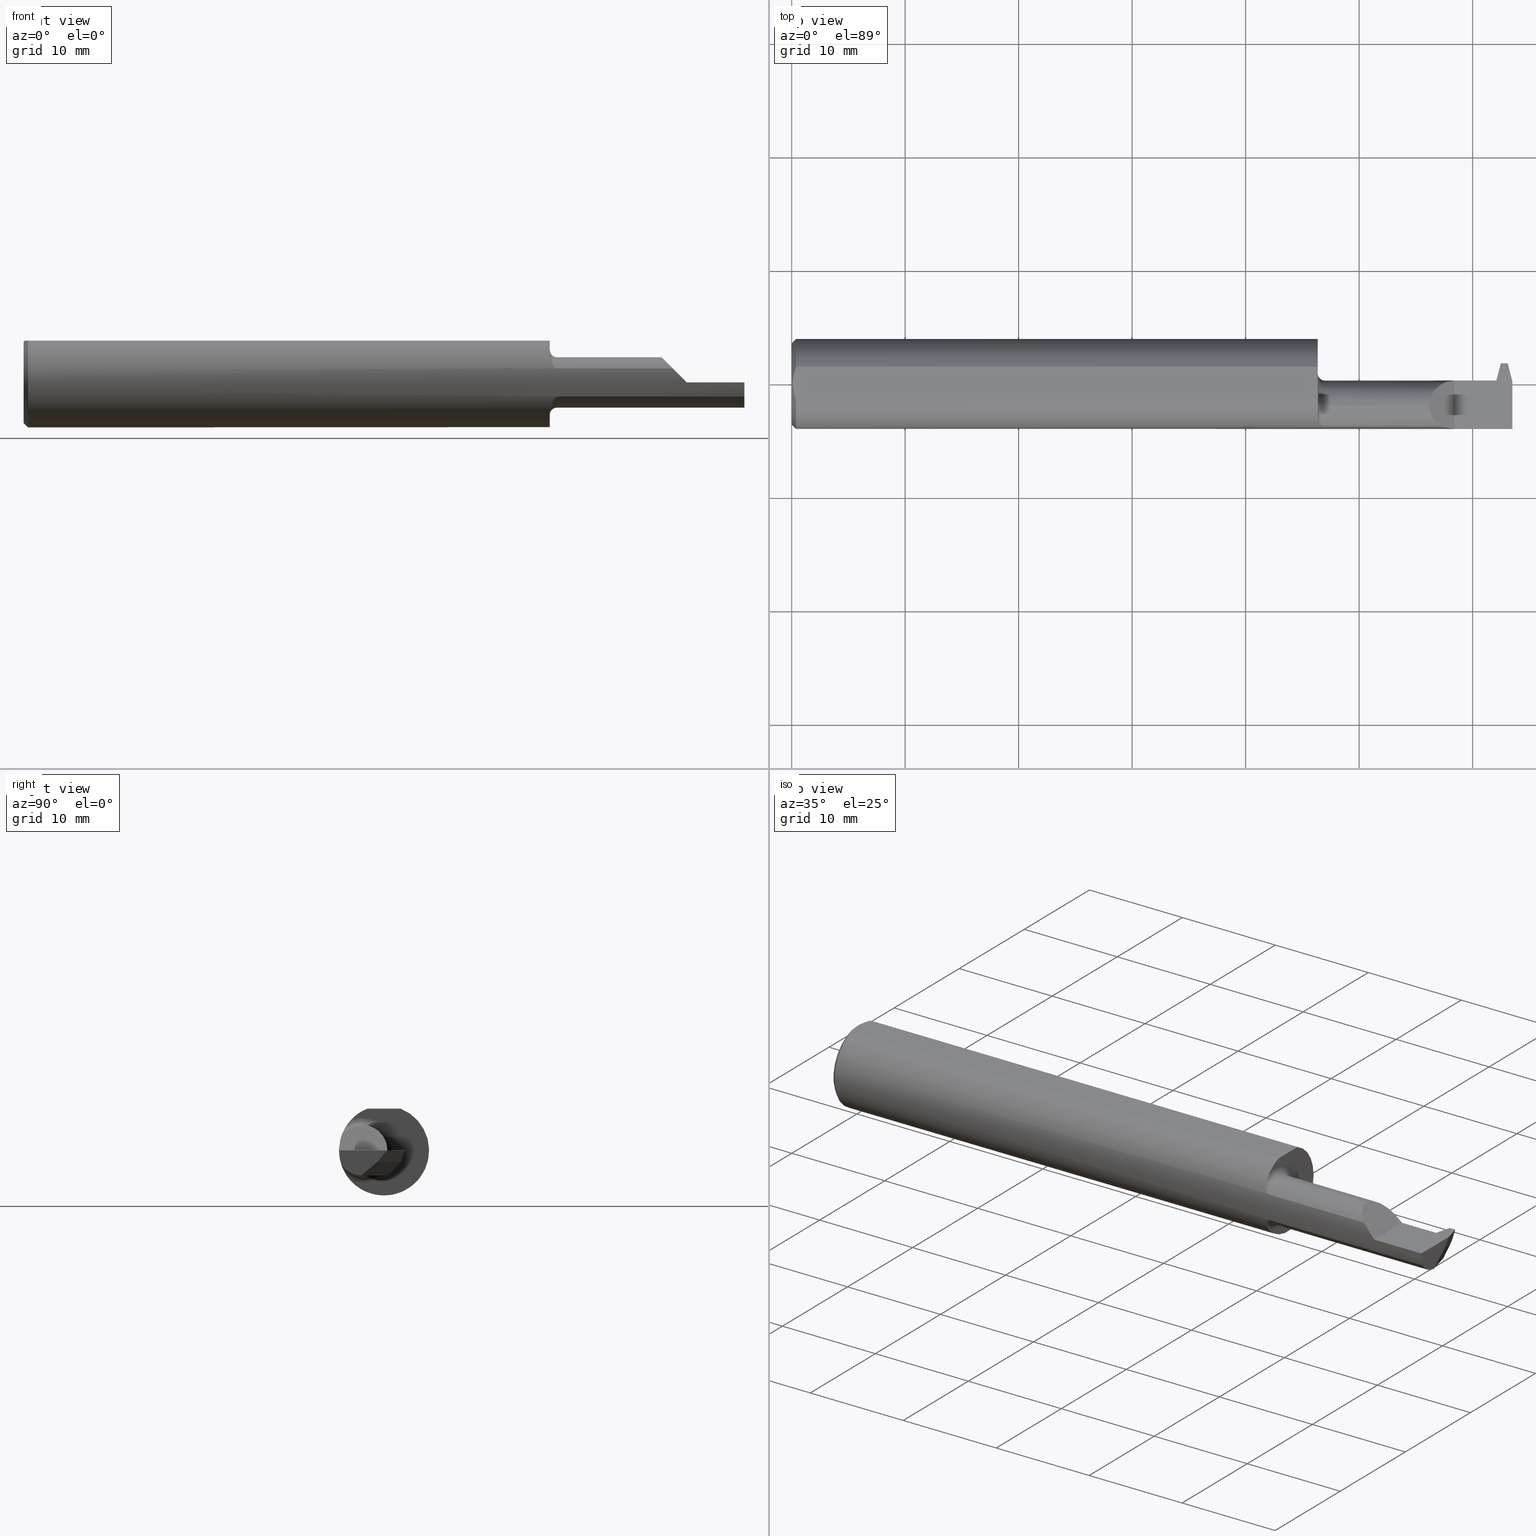
[diagram: canonical four-view strip — front | top / right | iso, engineering-drawing reading convention]
A machine part, canonical four-view strip (front | top / right | iso — engineering-drawing reading convention). The complete STEP part file that produces these views, byte-faithful:
ISO-10303-21;
HEADER;
FILE_DESCRIPTION (( 'STEP AP203' ),
    '1' );
FILE_NAME ('230946-FAT230600-14.STEP',
    '2024-05-01T18:10:07',
    ( '' ),
    ( '' ),
    'SwSTEP 2.0',
    'SolidWorks 2022',
    '' );
FILE_SCHEMA (( 'CONFIG_CONTROL_DESIGN' ));
ENDSEC;

DATA;
#1 = ORIENTED_EDGE ( 'NONE', *, *, #145, .T. ) ;
#2 = CARTESIAN_POINT ( 'NONE',  ( 1.849999999999999867, -0.1483222222222221054, -0.04865930943880881349 ) ) ;
#3 = ORIENTED_EDGE ( 'NONE', *, *, #786, .T. ) ;
#4 = ORIENTED_EDGE ( 'NONE', *, *, #605, .T. ) ;
#5 = AXIS2_PLACEMENT_3D ( 'NONE', #545, #20, #837 ) ;
#6 = CARTESIAN_POINT ( 'NONE',  ( 1.825000000000000400, -0.1194474109263642114, -0.1006886055822860393 ) ) ;
#7 = LOCAL_TIME ( 11, 10, 7.000000000000000000, #853 ) ;
#8 = ADVANCED_FACE ( 'NONE', ( #432 ), #297, .F. ) ;
#9 = DIRECTION ( 'NONE',  ( 1.000000000000000000, 0.000000000000000000, 0.000000000000000000 ) ) ;
#10 = ORIENTED_EDGE ( 'NONE', *, *, #289, .T. ) ;
#11 = CARTESIAN_POINT ( 'NONE',  ( 1.824999999999999956, -0.1152534391534390523, -0.1052798877435976166 ) ) ;
#12 = DIRECTION ( 'NONE',  ( -1.000000000000000000, -0.000000000000000000, -0.000000000000000000 ) ) ;
#13 = ORIENTED_EDGE ( 'NONE', *, *, #725, .F. ) ;
#14 = LINE ( 'NONE', #614, #85 ) ;
#15 = CARTESIAN_POINT ( 'NONE',  ( 1.828500940198883429, -0.1336093403149761771, -0.08093965625166067712 ) ) ;
#16 = LINE ( 'NONE', #838, #612 ) ;
#17 = EDGE_LOOP ( 'NONE', ( #692, #702, #447, #923, #52 ) ) ;
#18 =( NAMED_UNIT ( * ) PLANE_ANGLE_UNIT ( ) SI_UNIT ( $, .RADIAN. ) );
#19 = AXIS2_PLACEMENT_3D ( 'NONE', #295, #878, #218 ) ;
#20 = DIRECTION ( 'NONE',  ( -3.429683675536004882E-17, 0.6427876096865379196, -0.7660444431189792347 ) ) ;
#21 = AXIS2_PLACEMENT_3D ( 'NONE', #118, #775, #559 ) ;
#22 = PRODUCT_DEFINITION_FORMATION_WITH_SPECIFIED_SOURCE ( 'ANY', '', #272, .NOT_KNOWN. ) ;
#23 = DIRECTION ( 'NONE',  ( 0.2503800040544348904, 0.9681476403781094087, 0.000000000000000000 ) ) ;
#24 = VERTEX_POINT ( 'NONE', #90 ) ;
#25 = DIRECTION ( 'NONE',  ( 0.000000000000000000, 0.000000000000000000, 1.000000000000000000 ) ) ;
#26 = ADVANCED_FACE ( 'NONE', ( #467 ), #842, .T. ) ;
#27 = LINE ( 'NONE', #594, #670 ) ;
#28 = ADVANCED_BREP_SHAPE_REPRESENTATION ( '230946-FAT230600-14', ( #607, #662 ), #245 ) ;
#29 = CARTESIAN_POINT ( 'NONE',  ( 1.849999999999999867, -0.07560000000000001441, 0.000000000000000000 ) ) ;
#30 = ORIENTED_EDGE ( 'NONE', *, *, #316, .T. ) ;
#31 = DIRECTION ( 'NONE',  ( -0.000000000000000000, 0.000000000000000000, 1.000000000000000000 ) ) ;
#32 = DIRECTION ( 'NONE',  ( 1.000000000000000000, 0.000000000000000000, 0.000000000000000000 ) ) ;
#33 = LINE ( 'NONE', #767, #780 ) ;
#34 = ADVANCED_FACE ( 'NONE', ( #897 ), #323, .F. ) ;
#35 = ORIENTED_EDGE ( 'NONE', *, *, #580, .T. ) ;
#36 = DIRECTION ( 'NONE',  ( 1.000000000000000000, 0.000000000000000000, 0.000000000000000000 ) ) ;
#37 = AXIS2_PLACEMENT_3D ( 'NONE', #798, #522, #935 ) ;
#38 = CIRCLE ( 'NONE', #582, 0.02500000000000000486 ) ;
#39 = DIRECTION ( 'NONE',  ( -0.1571540165094708896, 0.2029672248372562937, 0.9664920696709329295 ) ) ;
#40 = CIRCLE ( 'NONE', #21, 0.1125000000000000305 ) ;
#41 = CC_DESIGN_PERSON_AND_ORGANIZATION_ASSIGNMENT ( #869, #210, ( #272 ) ) ;
#42 = EDGE_CURVE ( 'NONE', #681, #687, #933, .T. ) ;
#43 = ORIENTED_EDGE ( 'NONE', *, *, #756, .T. ) ;
#44 = CALENDAR_DATE ( 2024, 1, 5 ) ;
#45 = EDGE_CURVE ( 'NONE', #303, #831, #463, .T. ) ;
#46 = PLANE ( 'NONE',  #761 ) ;
#47 = CARTESIAN_POINT ( 'NONE',  ( 0.003999999999996986001, -0.009882491626910055310, 0.1450999999999999790 ) ) ;
#48 = VERTEX_POINT ( 'NONE', #754 ) ;
#49 = APPROVAL_ROLE ( '' ) ;
#50 = CARTESIAN_POINT ( 'NONE',  ( 1.824999999999999956, -0.05756040305626777820, 0.1450999999999999790 ) ) ;
#51 = CARTESIAN_POINT ( 'NONE',  ( 2.500000000000000000, -0.07999379951320567672, -0.08738961337503305116 ) ) ;
#52 = ORIENTED_EDGE ( 'NONE', *, *, #659, .F. ) ;
#53 = DATE_TIME_ROLE ( 'classification_date' ) ;
#54 = LINE ( 'NONE', #189, #606 ) ;
#55 = AXIS2_PLACEMENT_3D ( 'NONE', #207, #719, #791 ) ;
#56 = CARTESIAN_POINT ( 'NONE',  ( 0.000000000000000000, 1.819825143532968629E-17, 0.1411000000000003085 ) ) ;
#57 = ORIENTED_EDGE ( 'NONE', *, *, #165, .T. ) ;
#58 = PERSON_AND_ORGANIZATION_ROLE ( 'creator' ) ;
#59 = CARTESIAN_POINT ( 'NONE',  ( 1.824999999999999956, -0.07560000000000001441, -0.1125000000000000305 ) ) ;
#60 = APPROVAL ( #353, 'UNSPECIFIED' ) ;
#61 = CARTESIAN_POINT ( 'NONE',  ( 2.212499999999999911, -0.1054264415332321903, 0.08750000000000003608 ) ) ;
#62 = ORIENTED_EDGE ( 'NONE', *, *, #217, .F. ) ;
#63 = PERSON_AND_ORGANIZATION_ROLE ( 'creator' ) ;
#64 = DESIGN_CONTEXT ( 'detailed design', #449, 'design' ) ;
#65 = CARTESIAN_POINT ( 'NONE',  ( 2.450987044514465474, 0.003499838996864046512, -0.03999999999999909184 ) ) ;
#66 = DIRECTION ( 'NONE',  ( 0.2503800040544356675, -0.9681476403781091866, 0.000000000000000000 ) ) ;
#67 = VERTEX_POINT ( 'NONE', #389 ) ;
#68 = ORIENTED_EDGE ( 'NONE', *, *, #137, .T. ) ;
#69 = CARTESIAN_POINT ( 'NONE',  ( 1.824999999999999956, -0.1152534391534390523, 0.1052798877435976166 ) ) ;
#70 = CARTESIAN_POINT ( 'NONE',  ( 1.824999999999999956, -0.07560000000000000053, -0.08750000000000002220 ) ) ;
#71 = EDGE_CURVE ( 'NONE', #579, #542, #318, .T. ) ;
#72 = CIRCLE ( 'NONE', #291, 0.08750000000000002220 ) ;
#73 = ORIENTED_EDGE ( 'NONE', *, *, #786, .F. ) ;
#74 = EDGE_CURVE ( 'NONE', #675, #551, #907, .T. ) ;
#75 = VECTOR ( 'NONE', #39, 39.37007874015748854 ) ;
#76 = DIRECTION ( 'NONE',  ( 0.2503800040544348904, 0.9681476403781094087, -0.000000000000000000 ) ) ;
#77 = CARTESIAN_POINT ( 'NONE',  ( 2.472000000000000419, 0.08475090913530604342, -0.03999999999999909184 ) ) ;
#78 = VERTEX_POINT ( 'NONE', #680 ) ;
#79 = APPROVAL ( #121, 'UNSPECIFIED' ) ;
#80 = PLANE ( 'NONE',  #87 ) ;
#81 = EDGE_LOOP ( 'NONE', ( #537, #154, #666, #422 ) ) ;
#82 = ORIENTED_EDGE ( 'NONE', *, *, #813, .F. ) ;
#83 = DIRECTION ( 'NONE',  ( 0.000000000000000000, -1.000000000000000000, 0.000000000000000000 ) ) ;
#84 = DIRECTION ( 'NONE',  ( 0.000000000000000000, 0.000000000000000000, -1.000000000000000000 ) ) ;
#85 = VECTOR ( 'NONE', #97, 39.37007874015748143 ) ;
#86 = EDGE_LOOP ( 'NONE', ( #280, #111, #285, #398, #340 ) ) ;
#87 = AXIS2_PLACEMENT_3D ( 'NONE', #792, #509, #812 ) ;
#88 = AXIS2_PLACEMENT_3D ( 'NONE', #710, #640, #331 ) ;
#89 = DIRECTION ( 'NONE',  ( 0.000000000000000000, 0.000000000000000000, -1.000000000000000000 ) ) ;
#90 = CARTESIAN_POINT ( 'NONE',  ( 2.212499999999999911, -0.07560000000000001441, 0.08750000000000002220 ) ) ;
#91 = ORIENTED_EDGE ( 'NONE', *, *, #247, .F. ) ;
#92 = DIRECTION ( 'NONE',  ( -1.000000000000000000, -0.000000000000000000, -0.000000000000000000 ) ) ;
#93 = B_SPLINE_CURVE_WITH_KNOTS ( 'NONE', 3,
 ( #917, #414, #114, #851, #647, #270 ),
 .UNSPECIFIED., .F., .F.,
 ( 4, 2, 4 ),
 ( 0.002945485300212740808, 0.003688377603187770627, 0.004431269906162800011 ),
 .UNSPECIFIED. ) ;
#94 = CARTESIAN_POINT ( 'NONE',  ( 0.01499999999999970281, 0.000000000000000000, -0.1560999999999999888 ) ) ;
#95 = DIRECTION ( 'NONE',  ( 0.7071067811865483499, 8.659560562354922997E-17, 0.7071067811865466846 ) ) ;
#96 = ORIENTED_EDGE ( 'NONE', *, *, #580, .F. ) ;
#97 = DIRECTION ( 'NONE',  ( -0.000000000000000000, 1.000000000000000000, -0.000000000000000000 ) ) ;
#98 = CARTESIAN_POINT ( 'NONE',  ( 1.846912290126283329, -0.1481422360124338977, -0.04921189835249257377 ) ) ;
#99 = EDGE_CURVE ( 'NONE', #67, #150, #16, .T. ) ;
#100 = DIRECTION ( 'NONE',  ( 0.000000000000000000, 1.000000000000000000, -1.224646799147353207E-16 ) ) ;
#101 = VERTEX_POINT ( 'NONE', #609 ) ;
#102 = AXIS2_PLACEMENT_3D ( 'NONE', #211, #571, #424 ) ;
#103 = DIRECTION ( 'NONE',  ( -1.000000000000000000, 0.000000000000000000, 0.000000000000000000 ) ) ;
#104 = CONICAL_SURFACE ( 'NONE', #644, 0.1560999999999999888, 0.7853981633974471688 ) ;
#105 = AXIS2_PLACEMENT_3D ( 'NONE', #403, #757, #899 ) ;
#106 = CARTESIAN_POINT ( 'NONE',  ( 1.824999999999999956, 0.1000000000000000056, 0.1450999999999999790 ) ) ;
#107 = VERTEX_POINT ( 'NONE', #834 ) ;
#108 = CARTESIAN_POINT ( 'NONE',  ( 2.442499999999999893, -0.05310845665136228883, -0.08750000000000006384 ) ) ;
#109 = DIRECTION ( 'NONE',  ( -1.000000000000000000, -0.000000000000000000, -0.000000000000000000 ) ) ;
#110 = PLANE ( 'NONE',  #459 ) ;
#111 = ORIENTED_EDGE ( 'NONE', *, *, #605, .F. ) ;
#112 = DIRECTION ( 'NONE',  ( -1.000000000000000000, -0.000000000000000000, -0.000000000000000000 ) ) ;
#113 = DIRECTION ( 'NONE',  ( -1.000000000000000000, -0.000000000000000000, -0.000000000000000000 ) ) ;
#114 = CARTESIAN_POINT ( 'NONE',  ( 0.008799784310863792772, 0.03878477980766483618, 0.1451000000000000068 ) ) ;
#115 = EDGE_LOOP ( 'NONE', ( #347, #822, #481, #43, #35, #750 ) ) ;
#116 = VECTOR ( 'NONE', #113, 39.37007874015748143 ) ;
#117 = CARTESIAN_POINT ( 'NONE',  ( 2.499208634579223709, -0.07706537013471990993, -0.08750000000000002220 ) ) ;
#118 = CARTESIAN_POINT ( 'NONE',  ( 1.824999999999999956, -0.07560000000000001441, 0.000000000000000000 ) ) ;
#119 = VECTOR ( 'NONE', #500, 39.37007874015748143 ) ;
#120 = ORIENTED_EDGE ( 'NONE', *, *, #289, .F. ) ;
#121 = APPROVAL_STATUS ( 'not_yet_approved' ) ;
#122 = CARTESIAN_POINT ( 'NONE',  ( 1.824999999999999956, 0.05756040305626777126, 0.1450999999999999790 ) ) ;
#123 = PRODUCT_DEFINITION_SHAPE ( 'NONE', 'NONE',  #825 ) ;
#124 = CARTESIAN_POINT ( 'NONE',  ( 2.483431041314417609, 0.07410000000000004083, 0.000000000000000000 ) ) ;
#125 = ORIENTED_EDGE ( 'NONE', *, *, #185, .T. ) ;
#126 = DATE_AND_TIME ( #577, #445 ) ;
#127 = LINE ( 'NONE', #566, #888 ) ;
#128 = CARTESIAN_POINT ( 'NONE',  ( 1.824999999999999956, -0.07559999999999998666, 0.1125000000000000305 ) ) ;
#129 = VERTEX_POINT ( 'NONE', #546 ) ;
#130 = CC_DESIGN_PERSON_AND_ORGANIZATION_ASSIGNMENT ( #365, #281, ( #22 ) ) ;
#131 = DIRECTION ( 'NONE',  ( -1.000000000000000000, -0.000000000000000000, -0.000000000000000000 ) ) ;
#132 = CARTESIAN_POINT ( 'NONE',  ( 2.483431041314417609, 0.07410000000000004083, 0.000000000000000000 ) ) ;
#133 = ORIENTED_EDGE ( 'NONE', *, *, #558, .F. ) ;
#134 = AXIS2_PLACEMENT_3D ( 'NONE', #455, #762, #103 ) ;
#135 = CARTESIAN_POINT ( 'NONE',  ( 2.251340690561190794, -0.1483222222222220776, 0.04865930943880889675 ) ) ;
#136 = DIRECTION ( 'NONE',  ( -1.000000000000000000, 0.000000000000000000, 0.000000000000000000 ) ) ;
#137 = EDGE_CURVE ( 'NONE', #527, #887, #173, .T. ) ;
#138 = VERTEX_POINT ( 'NONE', #471 ) ;
#139 = ORIENTED_EDGE ( 'NONE', *, *, #406, .F. ) ;
#140 = ADVANCED_FACE ( 'NONE', ( #531 ), #215, .T. ) ;
#141 = DIRECTION ( 'NONE',  ( -1.000000000000000000, -0.000000000000000000, -0.000000000000000000 ) ) ;
#142 = EDGE_CURVE ( 'NONE', #407, #302, #493, .T. ) ;
#143 = FACE_OUTER_BOUND ( 'NONE', #937, .T. ) ;
#144 = VERTEX_POINT ( 'NONE', #685 ) ;
#145 = EDGE_CURVE ( 'NONE', #551, #144, #623, .T. ) ;
#146 = VERTEX_POINT ( 'NONE', #550 ) ;
#147 = CARTESIAN_POINT ( 'NONE',  ( 1.849999999999999867, -0.07560000000000001441, 0.000000000000000000 ) ) ;
#148 = LINE ( 'NONE', #77, #277 ) ;
#149 = CIRCLE ( 'NONE', #195, 0.08750000000000002220 ) ;
#150 = VERTEX_POINT ( 'NONE', #381 ) ;
#151 = ORIENTED_EDGE ( 'NONE', *, *, #71, .F. ) ;
#152 = VECTOR ( 'NONE', #628, 39.37007874015748143 ) ;
#153 = CARTESIAN_POINT ( 'NONE',  ( 1.849999999999999867, -0.07560000000000001441, 0.000000000000000000 ) ) ;
#154 = ORIENTED_EDGE ( 'NONE', *, *, #142, .T. ) ;
#155 = CARTESIAN_POINT ( 'NONE',  ( 1.848423634396825666, -0.1483222222223044007, -0.04865930943875496073 ) ) ;
#156 = ORIENTED_EDGE ( 'NONE', *, *, #783, .F. ) ;
#157 = DIRECTION ( 'NONE',  ( 0.000000000000000000, 0.000000000000000000, -1.000000000000000000 ) ) ;
#158 = CARTESIAN_POINT ( 'NONE',  ( 1.843142483653402275, -0.1472352028746813646, 0.05186888255903812639 ) ) ;
#159 = AXIS2_PLACEMENT_3D ( 'NONE', #483, #499, #622 ) ;
#160 = ORIENTED_EDGE ( 'NONE', *, *, #99, .F. ) ;
#161 = DIRECTION ( 'NONE',  ( 1.000000000000000000, 0.000000000000000000, 0.000000000000000000 ) ) ;
#162 = AXIS2_PLACEMENT_3D ( 'NONE', #626, #631, #769 ) ;
#163 = AXIS2_PLACEMENT_3D ( 'NONE', #29, #450, #821 ) ;
#164 = FACE_OUTER_BOUND ( 'NONE', #919, .T. ) ;
#165 = EDGE_CURVE ( 'NONE', #864, #107, #306, .T. ) ;
#166 = CARTESIAN_POINT ( 'NONE',  ( 1.824999999999999956, -0.1152534391534390523, 0.1052798877435976166 ) ) ;
#167 =( BOUNDED_CURVE ( )  B_SPLINE_CURVE ( 3, ( #426, #61, #370, #661 ),
 .UNSPECIFIED., .F., .F. ) 
 B_SPLINE_CURVE_WITH_KNOTS ( ( 4, 4 ),
 ( 0.000000000000000000, 0.9811027303930319743 ),
 .UNSPECIFIED. ) 
 CURVE ( )  GEOMETRIC_REPRESENTATION_ITEM ( )  RATIONAL_B_SPLINE_CURVE ( ( 1.000000000000000000, 0.9213821585145209880, 0.9213821585145209880, 1.000000000000000000 ) ) 
 REPRESENTATION_ITEM ( '' )  );
#168 = ORIENTED_EDGE ( 'NONE', *, *, #725, .T. ) ;
#169 = CARTESIAN_POINT ( 'NONE',  ( 2.459999999999999964, 0.07190000000000010272, -4.286122238378320280E-17 ) ) ;
#170 = EDGE_CURVE ( 'NONE', #101, #891, #770, .T. ) ;
#171 = EDGE_CURVE ( 'NONE', #302, #784, #40, .T. ) ;
#172 = CARTESIAN_POINT ( 'NONE',  ( 2.472000000000000419, 0.08475090913530604342, -0.03999999999999909184 ) ) ;
#173 = LINE ( 'NONE', #328, #444 ) ;
#174 = ORIENTED_EDGE ( 'NONE', *, *, #615, .F. ) ;
#175 = EDGE_CURVE ( 'NONE', #332, #24, #425, .T. ) ;
#176 = LINE ( 'NONE', #469, #720 ) ;
#177 = FACE_OUTER_BOUND ( 'NONE', #376, .T. ) ;
#178 = DIRECTION ( 'NONE',  ( -1.000000000000000000, -5.335640612625570952E-17, 0.000000000000000000 ) ) ;
#179 = ORIENTED_EDGE ( 'NONE', *, *, #513, .T. ) ;
#180 = CIRCLE ( 'NONE', #354, 0.08750000000000002220 ) ;
#181 = CARTESIAN_POINT ( 'NONE',  ( 2.449241346247910567, 0.1161437979725521014, -0.08750000000000006384 ) ) ;
#182 = CARTESIAN_POINT ( 'NONE',  ( 2.440987044514465687, 0.001198827012964401219, -0.04193077830702378328 ) ) ;
#183 = ORIENTED_EDGE ( 'NONE', *, *, #615, .T. ) ;
#184 = CYLINDRICAL_SURFACE ( 'NONE', #627, 0.1560999999999999888 ) ;
#185 = EDGE_CURVE ( 'NONE', #138, #940, #33, .T. ) ;
#186 = CARTESIAN_POINT ( 'NONE',  ( 1.849999999999999867, -0.1483222222222221054, 0.04865930943880881349 ) ) ;
#187 = CARTESIAN_POINT ( 'NONE',  ( 0.01499999999999970107, -0.05756040305626777126, 0.1450999999999999790 ) ) ;
#188 = ORIENTED_EDGE ( 'NONE', *, *, #384, .T. ) ;
#189 = CARTESIAN_POINT ( 'NONE',  ( 1.824999999999999956, 0.01190000000000001473, -4.286122238378320280E-17 ) ) ;
#190 = DIRECTION ( 'NONE',  ( 0.2013133534504512878, 0.2013133534504512878, 0.9586166425871539554 ) ) ;
#191 = CARTESIAN_POINT ( 'NONE',  ( 0.005042865002153306721, -0.01979865541750971611, 0.1451000000000000068 ) ) ;
#192 = ORIENTED_EDGE ( 'NONE', *, *, #659, .T. ) ;
#193 = PERSON_AND_ORGANIZATION ( #222, #338 ) ;
#194 =( BOUNDED_CURVE ( )  B_SPLINE_CURVE ( 3, ( #773, #117, #845, #196 ),
 .UNSPECIFIED., .F., .T. ) 
 B_SPLINE_CURVE_WITH_KNOTS ( ( 4, 4 ),
 ( 0.6981317007977302369, 0.7483676794121204567 ),
 .UNSPECIFIED. ) 
 CURVE ( )  GEOMETRIC_REPRESENTATION_ITEM ( )  RATIONAL_B_SPLINE_CURVE ( ( 1.000000000000000000, 0.9997897065944802986, 0.9997897065944802986, 1.000000000000000000 ) ) 
 REPRESENTATION_ITEM ( '' )  );
#195 = AXIS2_PLACEMENT_3D ( 'NONE', #417, #910, #709 ) ;
#196 = CARTESIAN_POINT ( 'NONE',  ( 2.500000000000000000, -0.07999379951320567672, -0.08738961337503305116 ) ) ;
#197 = AXIS2_PLACEMENT_3D ( 'NONE', #742, #530, #462 ) ;
#198 = LINE ( 'NONE', #701, #75 ) ;
#199 = VECTOR ( 'NONE', #418, 39.37007874015748143 ) ;
#200 = EDGE_LOOP ( 'NONE', ( #464, #501, #156 ) ) ;
#201 = DIRECTION ( 'NONE',  ( 1.000000000000000000, 0.000000000000000000, 0.000000000000000000 ) ) ;
#202 = DIRECTION ( 'NONE',  ( 0.000000000000000000, -0.7660444431189792347, -0.6427876096865379196 ) ) ;
#203 = ADVANCED_FACE ( 'NONE', ( #788 ), #278, .T. ) ;
#204 = CARTESIAN_POINT ( 'NONE',  ( 1.824999999999999956, 0.000000000000000000, 0.000000000000000000 ) ) ;
#205 = VERTEX_POINT ( 'NONE', #857 ) ;
#206 = SHAPE_DEFINITION_REPRESENTATION ( #123, #28 ) ;
#207 = CARTESIAN_POINT ( 'NONE',  ( 1.824999999999999956, 0.2119000000000000050, 0.000000000000000000 ) ) ;
#208 = PLANE ( 'NONE',  #747 ) ;
#209 = ORIENTED_EDGE ( 'NONE', *, *, #797, .T. ) ;
#210 = PERSON_AND_ORGANIZATION_ROLE ( 'design_owner' ) ;
#211 = CARTESIAN_POINT ( 'NONE',  ( 2.399999999999999911, 0.09812689546841295296, 0.000000000000000000 ) ) ;
#212 = VECTOR ( 'NONE', #321, 39.37007874015748143 ) ;
#213 = CARTESIAN_POINT ( 'NONE',  ( 2.440987044514465687, 0.003499838996864046078, -0.03999999999999909184 ) ) ;
#214 = CARTESIAN_POINT ( 'NONE',  ( 2.460568958685582786, 0.07410000000000004083, 0.000000000000000000 ) ) ;
#215 = CONICAL_SURFACE ( 'NONE', #705, 0.1560999999999999888, 0.7853981633974471688 ) ;
#216 = APPROVAL_PERSON_ORGANIZATION ( #429, #689, #502 ) ;
#217 = EDGE_CURVE ( 'NONE', #551, #687, #373, .T. ) ;
#218 = DIRECTION ( 'NONE',  ( 0.000000000000000000, 0.000000000000000000, -1.000000000000000000 ) ) ;
#219 = B_SPLINE_CURVE_WITH_KNOTS ( 'NONE', 3,
 ( #11, #6, #673, #305, #15, #317, #238, #534, #758, #235, #816, #98, #155, #684 ),
 .UNSPECIFIED., .F., .F.,
 ( 4, 2, 2, 2, 2, 2, 4 ),
 ( 0.000000000000000000, 0.0004670506114816719875, 0.0009341012229633439750, 0.001401151834445016125, 0.001634677140185847267, 0.001751439793056262404, 0.001868202445926677542 ),
 .UNSPECIFIED. ) ;
#220 = EDGE_CURVE ( 'NONE', #817, #831, #93, .T. ) ;
#221 = CARTESIAN_POINT ( 'NONE',  ( 2.463053395752905050, 0.09969033124243456556, 0.001563435774021627563 ) ) ;
#222 = PERSON ( 'UNSPECIFIED', 'UNSPECIFIED', 'UNSPECIFIED', ('UNSPECIFIED'), ('UNSPECIFIED'), ('UNSPECIFIED') ) ;
#223 = ORIENTED_EDGE ( 'NONE', *, *, #517, .T. ) ;
#224 = DIRECTION ( 'NONE',  ( -0.000000000000000000, 1.000000000000000000, -0.000000000000000000 ) ) ;
#225 = DIRECTION ( 'NONE',  ( 0.000000000000000000, 0.000000000000000000, -1.000000000000000000 ) ) ;
#226 = ORIENTED_EDGE ( 'NONE', *, *, #679, .F. ) ;
#227 = VERTEX_POINT ( 'NONE', #51 ) ;
#228 = CARTESIAN_POINT ( 'NONE',  ( 2.467470127317753725, 0.01062689546841387271, -0.08750000000000006384 ) ) ;
#229 = CARTESIAN_POINT ( 'NONE',  ( 2.429429409888629987, 0.009400493273904695149, -0.02406399138364158016 ) ) ;
#230 = ORIENTED_EDGE ( 'NONE', *, *, #782, .F. ) ;
#231 = CC_DESIGN_APPROVAL ( #79, ( #825 ) ) ;
#232 = DIRECTION ( 'NONE',  ( 0.000000000000000000, -0.2055210070593990190, -0.9786527043120508695 ) ) ;
#233 = ORIENTED_EDGE ( 'NONE', *, *, #346, .T. ) ;
#234 = ORIENTED_EDGE ( 'NONE', *, *, #310, .F. ) ;
#235 = CARTESIAN_POINT ( 'NONE',  ( 1.843177178722074760, -0.1472468593966860528, -0.05183574833930116449 ) ) ;
#236 = CARTESIAN_POINT ( 'NONE',  ( 1.825472197989094880, -0.1233406036881489476, 0.09587047024759799696 ) ) ;
#237 = ORIENTED_EDGE ( 'NONE', *, *, #695, .T. ) ;
#238 = CARTESIAN_POINT ( 'NONE',  ( 1.834139466932422913, -0.1419217972574611242, -0.06523403485447477890 ) ) ;
#239 = CARTESIAN_POINT ( 'NONE',  ( 1.834127177403178210, -0.1419065933454018158, 0.06526588615221527723 ) ) ;
#240 = VECTOR ( 'NONE', #885, 39.37007874015748143 ) ;
#241 = VERTEX_POINT ( 'NONE', #182 ) ;
#242 = EDGE_CURVE ( 'NONE', #831, #144, #437, .T. ) ;
#243 = LENGTH_MEASURE_WITH_UNIT ( LENGTH_MEASURE( 0.02539999999999999897 ), #262 );
#244 = ADVANCED_FACE ( 'NONE', ( #696 ), #110, .F. ) ;
#245 =( GEOMETRIC_REPRESENTATION_CONTEXT ( 3 ) GLOBAL_UNCERTAINTY_ASSIGNED_CONTEXT ( ( #360 ) ) GLOBAL_UNIT_ASSIGNED_CONTEXT ( ( #539, #18, #688 ) ) REPRESENTATION_CONTEXT ( 'NONE', 'WORKASPACE' ) );
#246 = DIRECTION ( 'NONE',  ( -0.2945363905204716470, 0.000000000000000000, 0.9556402642517591861 ) ) ;
#247 = EDGE_CURVE ( 'NONE', #253, #205, #198, .T. ) ;
#248 = CARTESIAN_POINT ( 'NONE',  ( 1.825000000000000400, -0.1194473140465537320, 0.1006887116398777066 ) ) ;
#249 = EDGE_LOOP ( 'NONE', ( #329, #637, #663 ) ) ;
#250 = CARTESIAN_POINT ( 'NONE',  ( 2.500000000000000000, 0.000000000000000000, 0.000000000000000000 ) ) ;
#251 = PLANE ( 'NONE',  #5 ) ;
#252 = CARTESIAN_POINT ( 'NONE',  ( 1.838439982755449842, -0.1450712014230792490, 0.05769777552208709553 ) ) ;
#253 = VERTEX_POINT ( 'NONE', #496 ) ;
#254 = CARTESIAN_POINT ( 'NONE',  ( 2.442499999999999893, -0.07560000000000001441, -0.08750000000000006384 ) ) ;
#255 = DIRECTION ( 'NONE',  ( -1.000000000000000000, -0.000000000000000000, -0.000000000000000000 ) ) ;
#256 = ORIENTED_EDGE ( 'NONE', *, *, #513, .F. ) ;
#257 = AXIS2_PLACEMENT_3D ( 'NONE', #925, #109, #263 ) ;
#258 = DIRECTION ( 'NONE',  ( 0.2503800040544409411, -0.9681476403781079654, 0.000000000000000000 ) ) ;
#259 = CIRCLE ( 'NONE', #257, 0.1411000000000003085 ) ;
#260 = CARTESIAN_POINT ( 'NONE',  ( 2.442499999999999893, 0.01190000000000003208, 0.000000000000000000 ) ) ;
#261 = ORIENTED_EDGE ( 'NONE', *, *, #384, .F. ) ;
#262 =( LENGTH_UNIT ( ) NAMED_UNIT ( * ) SI_UNIT ( $, .METRE. ) );
#263 = DIRECTION ( 'NONE',  ( 0.000000000000000000, 0.000000000000000000, -1.000000000000000000 ) ) ;
#264 = CARTESIAN_POINT ( 'NONE',  ( 0.01160171645209438947, -0.04834448319362431162, 0.1450999999999999790 ) ) ;
#265 = VERTEX_POINT ( 'NONE', #632 ) ;
#266 = COORDINATED_UNIVERSAL_TIME_OFFSET ( 8, 0, .BEHIND. ) ;
#267 = LINE ( 'NONE', #410, #116 ) ;
#268 = APPLICATION_CONTEXT ( 'configuration controlled 3d designs of mechanical parts and assemblies' ) ;
#269 = EDGE_CURVE ( 'NONE', #859, #146, #921, .T. ) ;
#270 = CARTESIAN_POINT ( 'NONE',  ( 0.003999999999999595893, 1.377970445471898428E-17, 0.1450999999999999790 ) ) ;
#271 = ORIENTED_EDGE ( 'NONE', *, *, #170, .T. ) ;
#272 = PRODUCT ( '230946-FAT230600-14', '230946-FAT230600-14', '', ( #409 ) ) ;
#273 = EDGE_CURVE ( 'NONE', #597, #205, #717, .T. ) ;
#274 = EDGE_CURVE ( 'NONE', #687, #302, #918, .T. ) ;
#275 = VECTOR ( 'NONE', #880, 39.37007874015748143 ) ;
#276 = CARTESIAN_POINT ( 'NONE',  ( 2.300000000000000266, -0.1560999999999999888, -4.286122238378320280E-17 ) ) ;
#277 = VECTOR ( 'NONE', #375, 39.37007874015747433 ) ;
#278 = PLANE ( 'NONE',  #796 ) ;
#279 = CC_DESIGN_APPROVAL ( #60, ( #890 ) ) ;
#280 = ORIENTED_EDGE ( 'NONE', *, *, #653, .T. ) ;
#281 = PERSON_AND_ORGANIZATION_ROLE ( 'design_supplier' ) ;
#282 = DIRECTION ( 'NONE',  ( 0.000000000000000000, 0.000000000000000000, -1.000000000000000000 ) ) ;
#283 = CC_DESIGN_DATE_AND_TIME_ASSIGNMENT ( #423, #570, ( #825 ) ) ;
#284 = CARTESIAN_POINT ( 'NONE',  ( 2.133750000000000036, -0.1483222222222221054, 0.04865930943880881349 ) ) ;
#285 = ORIENTED_EDGE ( 'NONE', *, *, #517, .F. ) ;
#286 = FACE_OUTER_BOUND ( 'NONE', #115, .T. ) ;
#287 = DIRECTION ( 'NONE',  ( 0.03504448777032634355, -0.7066724431718361954, -0.7066724431718440780 ) ) ;
#288 = ORIENTED_EDGE ( 'NONE', *, *, #858, .F. ) ;
#289 = EDGE_CURVE ( 'NONE', #681, #814, #931, .T. ) ;
#290 = CARTESIAN_POINT ( 'NONE',  ( 2.442499999999999893, 0.1292708783910745396, -0.08750000000000006384 ) ) ;
#291 = AXIS2_PLACEMENT_3D ( 'NONE', #355, #161, #460 ) ;
#292 = DIRECTION ( 'NONE',  ( 0.000000000000000000, -0.7660444431189792347, -0.6427876096865379196 ) ) ;
#293 = AXIS2_PLACEMENT_3D ( 'NONE', #906, #690, #528 ) ;
#294 = ORIENTED_EDGE ( 'NONE', *, *, #452, .F. ) ;
#295 = CARTESIAN_POINT ( 'NONE',  ( 1.849999999999999867, -0.07560000000000001441, 0.000000000000000000 ) ) ;
#296 = FACE_OUTER_BOUND ( 'NONE', #950, .T. ) ;
#297 = PLANE ( 'NONE',  #748 ) ;
#298 = LINE ( 'NONE', #660, #454 ) ;
#299 = FACE_OUTER_BOUND ( 'NONE', #744, .T. ) ;
#300 = ORIENTED_EDGE ( 'NONE', *, *, #484, .F. ) ;
#301 = DIRECTION ( 'NONE',  ( 1.000000000000000000, 0.000000000000000000, 0.000000000000000000 ) ) ;
#302 = VERTEX_POINT ( 'NONE', #128 ) ;
#303 = VERTEX_POINT ( 'NONE', #56 ) ;
#304 = VECTOR ( 'NONE', #807, 39.37007874015748143 ) ;
#305 = CARTESIAN_POINT ( 'NONE',  ( 1.827213181498967387, -0.1303732011993284645, -0.08606307062930522445 ) ) ;
#306 = LINE ( 'NONE', #599, #538 ) ;
#307 = ORIENTED_EDGE ( 'NONE', *, *, #269, .F. ) ;
#308 = EDGE_CURVE ( 'NONE', #864, #624, #357, .T. ) ;
#309 = CARTESIAN_POINT ( 'NONE',  ( 2.459428715010504085, 0.005731502428090948405, -0.1921672704078045690 ) ) ;
#310 = EDGE_CURVE ( 'NONE', #808, #810, #943, .T. ) ;
#311 = DIRECTION ( 'NONE',  ( 0.000000000000000000, 0.000000000000000000, 1.000000000000000000 ) ) ;
#312 = VERTEX_POINT ( 'NONE', #2 ) ;
#313 = ADVANCED_FACE ( 'NONE', ( #441 ), #902, .F. ) ;
#314 = FACE_OUTER_BOUND ( 'NONE', #879, .T. ) ;
#315 = ADVANCED_FACE ( 'NONE', ( #886 ), #800, .T. ) ;
#316 = EDGE_CURVE ( 'NONE', #542, #265, #949, .T. ) ;
#317 = CARTESIAN_POINT ( 'NONE',  ( 1.831987253728904141, -0.1393884060084945309, -0.07052344322245764074 ) ) ;
#318 = LINE ( 'NONE', #325, #337 ) ;
#319 = VECTOR ( 'NONE', #434, 39.37007874015748143 ) ;
#320 = ORIENTED_EDGE ( 'NONE', *, *, #416, .T. ) ;
#321 = DIRECTION ( 'NONE',  ( -1.000000000000000000, 3.958391050572282125E-15, 3.958391050572325513E-15 ) ) ;
#322 = VECTOR ( 'NONE', #287, 39.37007874015748854 ) ;
#323 = TOROIDAL_SURFACE ( 'NONE', #163, 0.1125000000000000305, 0.02500000000000000139 ) ;
#324 = DIRECTION ( 'NONE',  ( -1.000000000000000000, -0.000000000000000000, -0.000000000000000000 ) ) ;
#325 = CARTESIAN_POINT ( 'NONE',  ( 2.500000000000000000, -0.07560000000000001441, -0.08750000000000006384 ) ) ;
#326 = ORIENTED_EDGE ( 'NONE', *, *, #678, .T. ) ;
#327 = CARTESIAN_POINT ( 'NONE',  ( 2.267079460017583870, -0.1534855594598297235, 0.03292053998241566137 ) ) ;
#328 = CARTESIAN_POINT ( 'NONE',  ( 2.500000000000000000, -0.05310845665136228883, -0.08750000000000006384 ) ) ;
#329 = ORIENTED_EDGE ( 'NONE', *, *, #165, .F. ) ;
#330 = CARTESIAN_POINT ( 'NONE',  ( 2.484000000000000430, 0.07190000000000001945, 0.000000000000000000 ) ) ;
#331 = DIRECTION ( 'NONE',  ( 0.000000000000000000, 0.000000000000000000, -1.000000000000000000 ) ) ;
#332 = VERTEX_POINT ( 'NONE', #655 ) ;
#333 = TOROIDAL_SURFACE ( 'NONE', #439, 0.1125000000000000305, 0.02500000000000000139 ) ;
#334 = DIRECTION ( 'NONE',  ( 1.000000000000000000, 0.000000000000000000, 0.000000000000000000 ) ) ;
#335 = AXIS2_PLACEMENT_3D ( 'NONE', #396, #324, #820 ) ;
#336 = LINE ( 'NONE', #706, #565 ) ;
#337 = VECTOR ( 'NONE', #541, 39.37007874015748143 ) ;
#338 = ORGANIZATION ( 'UNSPECIFIED', 'UNSPECIFIED', '' ) ;
#339 = DIRECTION ( 'NONE',  ( 1.000000000000000000, 2.134256245050228381E-16, -0.000000000000000000 ) ) ;
#340 = ORIENTED_EDGE ( 'NONE', *, *, #544, .T. ) ;
#341 = APPROVAL_DATE_TIME ( #634, #60 ) ;
#342 = EDGE_CURVE ( 'NONE', #107, #78, #446, .T. ) ;
#343 = CARTESIAN_POINT ( 'NONE',  ( 2.498829664094795788, -0.07560000000000001441, -0.08750000000000006384 ) ) ;
#344 = DIRECTION ( 'NONE',  ( 0.000000000000000000, -0.3255681544571569774, -0.9455185755993166241 ) ) ;
#345 = EDGE_CURVE ( 'NONE', #138, #808, #650, .T. ) ;
#346 = EDGE_CURVE ( 'NONE', #78, #597, #461, .T. ) ;
#347 = ORIENTED_EDGE ( 'NONE', *, *, #217, .T. ) ;
#348 = COORDINATED_UNIVERSAL_TIME_OFFSET ( 8, 0, .BEHIND. ) ;
#349 = LINE ( 'NONE', #181, #683 ) ;
#350 = ADVANCED_FACE ( 'NONE', ( #803 ), #208, .F. ) ;
#351 = CARTESIAN_POINT ( 'NONE',  ( 2.500000000000000000, -0.1560999999999999888, -4.286122238378320280E-17 ) ) ;
#352 = ORIENTED_EDGE ( 'NONE', *, *, #342, .F. ) ;
#353 = APPROVAL_STATUS ( 'not_yet_approved' ) ;
#354 = AXIS2_PLACEMENT_3D ( 'NONE', #147, #438, #823 ) ;
#355 = CARTESIAN_POINT ( 'NONE',  ( 1.849999999999999867, -0.07560000000000001441, 0.000000000000000000 ) ) ;
#356 = CIRCLE ( 'NONE', #293, 0.1411000000000003085 ) ;
#357 = LINE ( 'NONE', #936, #152 ) ;
#358 = ORIENTED_EDGE ( 'NONE', *, *, #242, .F. ) ;
#359 = CALENDAR_DATE ( 2024, 1, 5 ) ;
#360 = UNCERTAINTY_MEASURE_WITH_UNIT (LENGTH_MEASURE( 1.000000000000000082E-05 ), #539, 'distance_accuracy_value', 'NONE');
#361 = LINE ( 'NONE', #938, #872 ) ;
#362 = ADVANCED_FACE ( 'NONE', ( #143 ), #726, .F. ) ;
#363 = CARTESIAN_POINT ( 'NONE',  ( 2.431928916614725544, 0.01190000000000001647, -0.01216180653188870912 ) ) ;
#364 = ORIENTED_EDGE ( 'NONE', *, *, #883, .F. ) ;
#365 = PERSON_AND_ORGANIZATION ( #222, #338 ) ;
#366 = FACE_OUTER_BOUND ( 'NONE', #589, .T. ) ;
#367 = DIRECTION ( 'NONE',  ( 0.000000000000000000, 0.000000000000000000, 1.000000000000000000 ) ) ;
#368 = ORIENTED_EDGE ( 'NONE', *, *, #42, .T. ) ;
#369 = LINE ( 'NONE', #729, #240 ) ;
#370 = CARTESIAN_POINT ( 'NONE',  ( 2.226551603598015294, -0.1317355473876610505, 0.07344839640198407016 ) ) ;
#371 = AXIS2_PLACEMENT_3D ( 'NONE', #132, #871, #66 ) ;
#372 = ORIENTED_EDGE ( 'NONE', *, *, #657, .T. ) ;
#373 = CIRCLE ( 'NONE', #382, 0.1560999999999999888 ) ;
#374 = DIRECTION ( 'NONE',  ( 1.000000000000000000, -0.000000000000000000, -0.000000000000000000 ) ) ;
#375 = DIRECTION ( 'NONE',  ( 0.2503800040544409966, 0.9681476403781079654, 0.000000000000000000 ) ) ;
#376 = EDGE_LOOP ( 'NONE', ( #458, #82, #648, #908, #288, #740, #953, #307 ) ) ;
#377 = ADVANCED_FACE ( 'NONE', ( #575 ), #80, .T. ) ;
#378 = CARTESIAN_POINT ( 'NONE',  ( 2.154900000000000038, 0.1000000000000000056, 0.1450999999999999790 ) ) ;
#379 = ORIENTED_EDGE ( 'NONE', *, *, #74, .F. ) ;
#380 = FACE_OUTER_BOUND ( 'NONE', #17, .T. ) ;
#381 = CARTESIAN_POINT ( 'NONE',  ( 2.442499999999999893, -0.04764222079116626346, -0.08291328350578157369 ) ) ;
#382 = AXIS2_PLACEMENT_3D ( 'NONE', #204, #553, #475 ) ;
#383 = CARTESIAN_POINT ( 'NONE',  ( 2.442499999999999893, 0.02812541088382744872, -0.01933669171211858939 ) ) ;
#384 = EDGE_CURVE ( 'NONE', #241, #67, #435, .T. ) ;
#385 = ORIENTED_EDGE ( 'NONE', *, *, #813, .T. ) ;
#386 = ADVANCED_FACE ( 'NONE', ( #299 ), #730, .F. ) ;
#387 = CARTESIAN_POINT ( 'NONE',  ( 2.500000000000000000, 0.1292708783910745396, -0.08750000000000006384 ) ) ;
#388 = CARTESIAN_POINT ( 'NONE',  ( 1.849999999999999867, -0.07560000000000001441, -0.1125000000000000305 ) ) ;
#389 = CARTESIAN_POINT ( 'NONE',  ( 2.440987044514465687, -0.04764222079116627734, -0.08291328350578157369 ) ) ;
#390 = ORIENTED_EDGE ( 'NONE', *, *, #242, .T. ) ;
#391 = DIRECTION ( 'NONE',  ( 0.000000000000000000, 0.000000000000000000, 1.000000000000000000 ) ) ;
#392 = DIRECTION ( 'NONE',  ( -0.9277270166603223123, 0.2399265199903889423, -0.2859332921571735575 ) ) ;
#393 = DIRECTION ( 'NONE',  ( 0.000000000000000000, 0.000000000000000000, 1.000000000000000000 ) ) ;
#394 = CIRCLE ( 'NONE', #578, 0.08750000000000003608 ) ;
#395 = ORIENTED_EDGE ( 'NONE', *, *, #951, .F. ) ;
#396 = CARTESIAN_POINT ( 'NONE',  ( 2.442499999999999893, -0.07560000000000001441, 0.000000000000000000 ) ) ;
#397 = DIRECTION ( 'NONE',  ( 1.000000000000000000, -0.000000000000000000, -0.000000000000000000 ) ) ;
#398 = ORIENTED_EDGE ( 'NONE', *, *, #712, .F. ) ;
#399 = LINE ( 'NONE', #909, #212 ) ;
#400 = CARTESIAN_POINT ( 'NONE',  ( 0.000000000000000000, 0.000000000000000000, 0.000000000000000000 ) ) ;
#401 = CARTESIAN_POINT ( 'NONE',  ( 2.212499999999999911, -0.07560000000000001441, 0.08750000000000002220 ) ) ;
#402 = ORIENTED_EDGE ( 'NONE', *, *, #479, .F. ) ;
#403 = CARTESIAN_POINT ( 'NONE',  ( 0.01499999999999970281, 0.000000000000000000, 0.000000000000000000 ) ) ;
#404 = FACE_OUTER_BOUND ( 'NONE', #847, .T. ) ;
#405 = CARTESIAN_POINT ( 'NONE',  ( 2.212499999999999911, -0.02434368670764566409, 0.08750000000000006384 ) ) ;
#406 = EDGE_CURVE ( 'NONE', #253, #138, #148, .T. ) ;
#407 = VERTEX_POINT ( 'NONE', #665 ) ;
#408 = AXIS2_PLACEMENT_3D ( 'NONE', #840, #693, #391 ) ;
#409 = MECHANICAL_CONTEXT ( 'NONE', #268, 'mechanical' ) ;
#410 = CARTESIAN_POINT ( 'NONE',  ( 2.133750000000000036, -0.1483222222222221054, -0.04865930943880881349 ) ) ;
#411 = AXIS2_PLACEMENT_3D ( 'NONE', #759, #100, #393 ) ;
#412 = EDGE_CURVE ( 'NONE', #24, #814, #167, .T. ) ;
#413 = ADVANCED_FACE ( 'NONE', ( #296 ), #588, .F. ) ;
#414 = CARTESIAN_POINT ( 'NONE',  ( 0.01157928343552837129, 0.04828364633877424428, 0.1451000000000000068 ) ) ;
#415 = ORIENTED_EDGE ( 'NONE', *, *, #855, .T. ) ;
#416 = EDGE_CURVE ( 'NONE', #150, #542, #536, .T. ) ;
#417 = CARTESIAN_POINT ( 'NONE',  ( 2.440987044514465687, -0.07560000000000001441, 0.000000000000000000 ) ) ;
#418 = DIRECTION ( 'NONE',  ( 0.2503800040544356675, -0.9681476403781091866, 0.000000000000000000 ) ) ;
#419 = ORIENTED_EDGE ( 'NONE', *, *, #922, .T. ) ;
#420 = CARTESIAN_POINT ( 'NONE',  ( 1.824999999999999956, 0.000000000000000000, 0.000000000000000000 ) ) ;
#421 = DIRECTION ( 'NONE',  ( -2.454006198847627756E-15, -0.9455185755993167351, 0.3255681544571570329 ) ) ;
#422 = ORIENTED_EDGE ( 'NONE', *, *, #42, .F. ) ;
#423 = DATE_AND_TIME ( #865, #596 ) ;
#424 = DIRECTION ( 'NONE',  ( 0.000000000000000000, -0.7071067811865435759, -0.7071067811865514585 ) ) ;
#425 =( BOUNDED_CURVE ( )  B_SPLINE_CURVE ( 3, ( #926, #636, #405, #401 ),
 .UNSPECIFIED., .F., .F. ) 
 B_SPLINE_CURVE_WITH_KNOTS ( ( 4, 4 ),
 ( 4.712388980384686121, 6.283185307179586232 ),
 .UNSPECIFIED. ) 
 CURVE ( )  GEOMETRIC_REPRESENTATION_ITEM ( )  RATIONAL_B_SPLINE_CURVE ( ( 1.000000000000000000, 0.8047378541243641603, 0.8047378541243641603, 1.000000000000000000 ) ) 
 REPRESENTATION_ITEM ( '' )  );
#426 = CARTESIAN_POINT ( 'NONE',  ( 2.212499999999999911, -0.07560000000000001441, 0.08750000000000002220 ) ) ;
#427 = APPROVAL_PERSON_ORGANIZATION ( #193, #60, #643 ) ;
#428 = ORIENTED_EDGE ( 'NONE', *, *, #479, .T. ) ;
#429 = PERSON_AND_ORGANIZATION ( #222, #338 ) ;
#430 = CARTESIAN_POINT ( 'NONE',  ( 0.01499999999999970281, 0.05756040305626777126, 0.1450999999999999790 ) ) ;
#431 = DIRECTION ( 'NONE',  ( 0.2055210070593990190, 0.000000000000000000, 0.9786527043120508695 ) ) ;
#432 = FACE_OUTER_BOUND ( 'NONE', #476, .T. ) ;
#433 = ORIENTED_EDGE ( 'NONE', *, *, #558, .T. ) ;
#434 = DIRECTION ( 'NONE',  ( 0.03504448777032634355, 0.7066724431718361954, 0.7066724431718441890 ) ) ;
#435 = LINE ( 'NONE', #213, #828 ) ;
#436 = ORIENTED_EDGE ( 'NONE', *, *, #826, .T. ) ;
#437 = B_SPLINE_CURVE_WITH_KNOTS ( 'NONE', 3,
 ( #707, #47, #191, #846, #264, #187 ),
 .UNSPECIFIED., .F., .F.,
 ( 4, 2, 4 ),
 ( 0.004431269906162800011, 0.005173847132308577804, 0.005916424358454355596 ),
 .UNSPECIFIED. ) ;
#438 = DIRECTION ( 'NONE',  ( 1.000000000000000000, 0.000000000000000000, 0.000000000000000000 ) ) ;
#439 = AXIS2_PLACEMENT_3D ( 'NONE', #848, #334, #630 ) ;
#440 = ADVANCED_FACE ( 'NONE', ( #677 ), #608, .T. ) ;
#441 = FACE_OUTER_BOUND ( 'NONE', #801, .T. ) ;
#442 = ADVANCED_FACE ( 'NONE', ( #380 ), #104, .T. ) ;
#443 = EDGE_LOOP ( 'NONE', ( #188, #932 ) ) ;
#444 = VECTOR ( 'NONE', #178, 39.37007874015748143 ) ;
#445 = LOCAL_TIME ( 11, 10, 7.000000000000000000, #785 ) ;
#446 = LINE ( 'NONE', #867, #304 ) ;
#447 = ORIENTED_EDGE ( 'NONE', *, *, #220, .F. ) ;
#448 = PLANE ( 'NONE',  #197 ) ;
#449 = APPLICATION_CONTEXT ( 'configuration controlled 3d designs of mechanical parts and assemblies' ) ;
#450 = DIRECTION ( 'NONE',  ( 1.000000000000000000, 0.000000000000000000, 0.000000000000000000 ) ) ;
#451 = EDGE_LOOP ( 'NONE', ( #520, #595, #179, #913 ) ) ;
#452 = EDGE_CURVE ( 'NONE', #859, #771, #896, .T. ) ;
#453 = EDGE_CURVE ( 'NONE', #150, #887, #466, .T. ) ;
#454 = VECTOR ( 'NONE', #503, 39.37007874015748143 ) ;
#455 = CARTESIAN_POINT ( 'NONE',  ( 2.300000000000000266, 0.2000000000000000111, -4.286122238378320280E-17 ) ) ;
#456 = CARTESIAN_POINT ( 'NONE',  ( 1.844287531111194811, -0.1475964515845978875, 0.05082537659279134923 ) ) ;
#457 = AXIS2_PLACEMENT_3D ( 'NONE', #153, #301, #225 ) ;
#458 = ORIENTED_EDGE ( 'NONE', *, *, #711, .T. ) ;
#459 = AXIS2_PLACEMENT_3D ( 'NONE', #486, #421, #344 ) ;
#460 = DIRECTION ( 'NONE',  ( 0.000000000000000000, 0.000000000000000000, -1.000000000000000000 ) ) ;
#461 =( BOUNDED_CURVE ( )  B_SPLINE_CURVE ( 3, ( #738, #229, #363, #512 ),
 .UNSPECIFIED., .F., .T. ) 
 B_SPLINE_CURVE_WITH_KNOTS ( ( 4, 4 ),
 ( 1.156804228221845365, 1.570796326794896780 ),
 .UNSPECIFIED. ) 
 CURVE ( )  GEOMETRIC_REPRESENTATION_ITEM ( )  RATIONAL_B_SPLINE_CURVE ( ( 1.000000000000000000, 0.9857684695413674314, 0.9857684695413674314, 1.000000000000000000 ) ) 
 REPRESENTATION_ITEM ( '' )  );
#462 = DIRECTION ( 'NONE',  ( -0.2945363905204715915, 0.000000000000000000, -0.9556402642517591861 ) ) ;
#463 = LINE ( 'NONE', #763, #861 ) ;
#464 = ORIENTED_EDGE ( 'NONE', *, *, #416, .F. ) ;
#465 = PLANE ( 'NONE',  #526 ) ;
#466 = LINE ( 'NONE', #383, #610 ) ;
#467 = FACE_OUTER_BOUND ( 'NONE', #731, .T. ) ;
#468 = ORIENTED_EDGE ( 'NONE', *, *, #587, .F. ) ;
#469 = CARTESIAN_POINT ( 'NONE',  ( 2.498269301952187327, 0.1297184673394494170, -0.08750000000000006384 ) ) ;
#470 = PLANE ( 'NONE',  #134 ) ;
#471 = CARTESIAN_POINT ( 'NONE',  ( 2.465114561899610202, 0.05812689546841348642, -0.03999999999999991757 ) ) ;
#472 = ORIENTED_EDGE ( 'NONE', *, *, #452, .T. ) ;
#473 = CC_DESIGN_PERSON_AND_ORGANIZATION_ASSIGNMENT ( #714, #63, ( #22 ) ) ;
#474 = DIRECTION ( 'NONE',  ( -0.2503800040544409411, 0.9681476403781079654, 0.000000000000000000 ) ) ;
#475 = DIRECTION ( 'NONE',  ( 0.000000000000000000, 0.000000000000000000, -1.000000000000000000 ) ) ;
#476 = EDGE_LOOP ( 'NONE', ( #139, #868, #385, #764 ) ) ;
#477 = LINE ( 'NONE', #543, #745 ) ;
#478 = CARTESIAN_POINT ( 'NONE',  ( 0.01499999999999970281, 0.000000000000000000, -0.1560999999999999888 ) ) ;
#479 = EDGE_CURVE ( 'NONE', #927, #303, #356, .T. ) ;
#480 = DIRECTION ( 'NONE',  ( -0.000000000000000000, 0.000000000000000000, 1.000000000000000000 ) ) ;
#481 = ORIENTED_EDGE ( 'NONE', *, *, #171, .T. ) ;
#482 = ADVANCED_FACE ( 'NONE', ( #833 ), #889, .F. ) ;
#483 = CARTESIAN_POINT ( 'NONE',  ( 2.500000000000000000, -0.07560000000000001441, 0.000000000000000000 ) ) ;
#484 = EDGE_CURVE ( 'NONE', #129, #312, #219, .T. ) ;
#485 = ADVANCED_FACE ( 'NONE', ( #164 ), #448, .T. ) ;
#486 = CARTESIAN_POINT ( 'NONE',  ( 2.432628569999999879, 0.006786369108568744701, -0.1891037151198633748 ) ) ;
#487 = ADVANCED_FACE ( 'NONE', ( #753 ), #251, .T. ) ;
#488 = ORIENTED_EDGE ( 'NONE', *, *, #850, .T. ) ;
#489 = AXIS2_PLACEMENT_3D ( 'NONE', #400, #849, #787 ) ;
#490 = CARTESIAN_POINT ( 'NONE',  ( 0.000000000000000000, 0.000000000000000000, 0.000000000000000000 ) ) ;
#491 = VECTOR ( 'NONE', #901, 39.37007874015748143 ) ;
#492 = LINE ( 'NONE', #478, #700 ) ;
#493 = CIRCLE ( 'NONE', #411, 0.02500000000000000486 ) ;
#494 =( BOUNDED_CURVE ( )  B_SPLINE_CURVE ( 3, ( #276, #862, #327, #694 ),
 .UNSPECIFIED., .F., .T. ) 
 B_SPLINE_CURVE_WITH_KNOTS ( ( 4, 4 ),
 ( 4.712388980384687898, 5.029390440538067608 ),
 .UNSPECIFIED. ) 
 CURVE ( )  GEOMETRIC_REPRESENTATION_ITEM ( )  RATIONAL_B_SPLINE_CURVE ( ( 1.000000000000000000, 0.9916433564879546525, 0.9916433564879546525, 1.000000000000000000 ) ) 
 REPRESENTATION_ITEM ( '' )  );
#495 = CC_DESIGN_APPROVAL ( #689, ( #22 ) ) ;
#496 = CARTESIAN_POINT ( 'NONE',  ( 2.450987044514465474, 0.003499838996864046512, -0.03999999999999909184 ) ) ;
#497 = ORIENTED_EDGE ( 'NONE', *, *, #756, .F. ) ;
#498 = PERSON_AND_ORGANIZATION ( #222, #338 ) ;
#499 = DIRECTION ( 'NONE',  ( 1.000000000000000000, -0.000000000000000000, -0.000000000000000000 ) ) ;
#500 = DIRECTION ( 'NONE',  ( -1.000000000000000000, -0.000000000000000000, -0.000000000000000000 ) ) ;
#501 = ORIENTED_EDGE ( 'NONE', *, *, #453, .T. ) ;
#502 = APPROVAL_ROLE ( '' ) ;
#503 = DIRECTION ( 'NONE',  ( -1.000000000000000000, 2.595407707661540690E-15, 0.000000000000000000 ) ) ;
#504 = DIRECTION ( 'NONE',  ( -1.000000000000000000, -0.000000000000000000, -0.000000000000000000 ) ) ;
#505 = VERTEX_POINT ( 'NONE', #94 ) ;
#506 = CALENDAR_DATE ( 2024, 1, 5 ) ;
#507 = CIRCLE ( 'NONE', #809, 0.1560999999999999888 ) ;
#508 = LINE ( 'NONE', #724, #275 ) ;
#509 = DIRECTION ( 'NONE',  ( 1.000000000000000000, 0.000000000000000000, 0.000000000000000000 ) ) ;
#510 = ORIENTED_EDGE ( 'NONE', *, *, #544, .F. ) ;
#511 = CARTESIAN_POINT ( 'NONE',  ( 2.442499999999999893, -0.07560000000000001441, 0.000000000000000000 ) ) ;
#512 = CARTESIAN_POINT ( 'NONE',  ( 2.434482944938646920, 0.01190000000000008065, 0.000000000000000000 ) ) ;
#513 = EDGE_CURVE ( 'NONE', #265, #784, #38, .T. ) ;
#514 = ORIENTED_EDGE ( 'NONE', *, *, #412, .T. ) ;
#515 = ORIENTED_EDGE ( 'NONE', *, *, #854, .F. ) ;
#516 = ADVANCED_FACE ( 'NONE', ( #177 ), #470, .F. ) ;
#517 = EDGE_CURVE ( 'NONE', #146, #569, #27, .T. ) ;
#518 = DIRECTION ( 'NONE',  ( 0.000000000000000000, 0.000000000000000000, 1.000000000000000000 ) ) ;
#519 = CARTESIAN_POINT ( 'NONE',  ( 1.824999999999999956, -0.07560000000000001441, 0.000000000000000000 ) ) ;
#520 = ORIENTED_EDGE ( 'NONE', *, *, #142, .F. ) ;
#521 = EDGE_CURVE ( 'NONE', #303, #927, #259, .T. ) ;
#522 = DIRECTION ( 'NONE',  ( -1.000000000000000000, 0.000000000000000000, -0.000000000000000000 ) ) ;
#523 = VECTOR ( 'NONE', #190, 39.37007874015748854 ) ;
#524 = DIRECTION ( 'NONE',  ( -0.000000000000000000, 0.000000000000000000, -1.000000000000000000 ) ) ;
#525 = ORIENTED_EDGE ( 'NONE', *, *, #783, .T. ) ;
#526 = AXIS2_PLACEMENT_3D ( 'NONE', #387, #31, #914 ) ;
#527 = VERTEX_POINT ( 'NONE', #639 ) ;
#528 = DIRECTION ( 'NONE',  ( 0.000000000000000000, 0.000000000000000000, -1.000000000000000000 ) ) ;
#529 = ORIENTED_EDGE ( 'NONE', *, *, #924, .F. ) ;
#530 = DIRECTION ( 'NONE',  ( 0.9277270166603223123, 0.2399265199903888868, -0.2859332921571735020 ) ) ;
#531 = FACE_OUTER_BOUND ( 'NONE', #835, .T. ) ;
#532 = ORIENTED_EDGE ( 'NONE', *, *, #453, .F. ) ;
#533 = CIRCLE ( 'NONE', #159, 0.08750000000000003608 ) ;
#534 = CARTESIAN_POINT ( 'NONE',  ( 1.838473108792487931, -0.1450923729584386868, -0.05764485900181662986 ) ) ;
#535 = CARTESIAN_POINT ( 'NONE',  ( 1.827226674330529876, -0.1304125201963227398, 0.08600364038630171903 ) ) ;
#536 = CIRCLE ( 'NONE', #335, 0.08750000000000003608 ) ;
#537 = ORIENTED_EDGE ( 'NONE', *, *, #819, .F. ) ;
#538 = VECTOR ( 'NONE', #893, 39.37007874015748143 ) ;
#539 =( CONVERSION_BASED_UNIT ( 'INCH', #243 ) LENGTH_UNIT ( ) NAMED_UNIT ( #699 ) );
#540 = CARTESIAN_POINT ( 'NONE',  ( 0.01499999999999970281, 0.000000000000000000, 0.000000000000000000 ) ) ;
#541 = DIRECTION ( 'NONE',  ( -1.000000000000000000, -0.000000000000000000, -0.000000000000000000 ) ) ;
#542 = VERTEX_POINT ( 'NONE', #254 ) ;
#543 = CARTESIAN_POINT ( 'NONE',  ( 1.824999999999999956, -0.07560000000000001441, 0.08750000000000002220 ) ) ;
#544 = EDGE_CURVE ( 'NONE', #101, #48, #795, .T. ) ;
#545 = CARTESIAN_POINT ( 'NONE',  ( 2.450987044514465474, 0.003499838996864046512, -0.03999999999999909184 ) ) ;
#546 = CARTESIAN_POINT ( 'NONE',  ( 1.824999999999999956, -0.1152534391534390523, -0.1052798877435976166 ) ) ;
#547 = ORIENTED_EDGE ( 'NONE', *, *, #345, .T. ) ;
#548 = FACE_OUTER_BOUND ( 'NONE', #777, .T. ) ;
#549 = CARTESIAN_POINT ( 'NONE',  ( 2.434482944938646920, 0.01190000000000008065, 0.000000000000000000 ) ) ;
#550 = CARTESIAN_POINT ( 'NONE',  ( 2.500000000000000000, 0.01003259048162119527, 0.000000000000000000 ) ) ;
#551 = VERTEX_POINT ( 'NONE', #50 ) ;
#552 = PLANE ( 'NONE',  #37 ) ;
#553 = DIRECTION ( 'NONE',  ( 1.000000000000000000, 0.000000000000000000, 0.000000000000000000 ) ) ;
#554 = ORIENTED_EDGE ( 'NONE', *, *, #797, .F. ) ;
#555 = CARTESIAN_POINT ( 'NONE',  ( 2.442499999999999893, 0.003499838996864046078, -0.03999999999999909184 ) ) ;
#556 = ADVANCED_FACE ( 'NONE', ( #404 ), #557, .F. ) ;
#557 = PLANE ( 'NONE',  #489 ) ;
#558 = EDGE_CURVE ( 'NONE', #48, #312, #267, .T. ) ;
#559 = DIRECTION ( 'NONE',  ( 0.000000000000000000, 0.000000000000000000, -1.000000000000000000 ) ) ;
#560 = EDGE_LOOP ( 'NONE', ( #13, #57, #805, #183, #789, #91 ) ) ;
#561 = APPLICATION_PROTOCOL_DEFINITION ( 'international standard', 'config_control_design', 1994, #449 ) ;
#562 = DIRECTION ( 'NONE',  ( 0.000000000000000000, 0.000000000000000000, -1.000000000000000000 ) ) ;
#563 = DIRECTION ( 'NONE',  ( -0.1200238624775779583, 0.3232146245633323867, 0.9386834284807352713 ) ) ;
#564 = ORIENTED_EDGE ( 'NONE', *, *, #922, .F. ) ;
#565 = VECTOR ( 'NONE', #258, 39.37007874015748143 ) ;
#566 = CARTESIAN_POINT ( 'NONE',  ( 2.500000000000000000, -0.02351705752185811668, -0.03999999999999909184 ) ) ;
#567 = VECTOR ( 'NONE', #339, 39.37007874015748143 ) ;
#568 = CARTESIAN_POINT ( 'NONE',  ( 2.444482944938646707, 0.01190000000000008412, 0.000000000000000000 ) ) ;
#569 = VERTEX_POINT ( 'NONE', #929 ) ;
#570 = DATE_TIME_ROLE ( 'creation_date' ) ;
#571 = DIRECTION ( 'NONE',  ( 0.000000000000000000, -0.7071067811865514585, 0.7071067811865435759 ) ) ;
#572 = DIRECTION ( 'NONE',  ( -1.000000000000000000, 0.000000000000000000, -0.000000000000000000 ) ) ;
#573 = ORIENTED_EDGE ( 'NONE', *, *, #269, .T. ) ;
#574 = DIRECTION ( 'NONE',  ( 1.000000000000000000, 0.000000000000000000, 0.000000000000000000 ) ) ;
#575 = FACE_OUTER_BOUND ( 'NONE', #443, .T. ) ;
#576 = EDGE_LOOP ( 'NONE', ( #592, #151, #372, #844, #433, #603 ) ) ;
#577 = CALENDAR_DATE ( 2024, 1, 5 ) ;
#578 = AXIS2_PLACEMENT_3D ( 'NONE', #511, #141, #518 ) ;
#579 = VERTEX_POINT ( 'NONE', #343 ) ;
#580 = EDGE_CURVE ( 'NONE', #129, #675, #658, .T. ) ;
#581 = CARTESIAN_POINT ( 'NONE',  ( 1.824999999999999956, -0.07560000000000001441, 0.000000000000000000 ) ) ;
#582 = AXIS2_PLACEMENT_3D ( 'NONE', #388, #83, #157 ) ;
#583 = VECTOR ( 'NONE', #863, 39.37007874015748143 ) ;
#584 = ORIENTED_EDGE ( 'NONE', *, *, #220, .T. ) ;
#585 = EDGE_CURVE ( 'NONE', #891, #814, #494, .T. ) ;
#586 = DIRECTION ( 'NONE',  ( 1.000000000000000000, 5.335640612625570952E-17, 0.000000000000000000 ) ) ;
#587 = EDGE_CURVE ( 'NONE', #771, #569, #336, .T. ) ;
#588 = PLANE ( 'NONE',  #811 ) ;
#589 = EDGE_LOOP ( 'NONE', ( #611, #564, #629, #234 ) ) ;
#590 = LINE ( 'NONE', #65, #930 ) ;
#591 = DIRECTION ( 'NONE',  ( -0.9786527043120508695, 0.000000000000000000, 0.2055210070593990190 ) ) ;
#592 = ORIENTED_EDGE ( 'NONE', *, *, #316, .F. ) ;
#593 = AXIS2_PLACEMENT_3D ( 'NONE', #581, #131, #282 ) ;
#594 = CARTESIAN_POINT ( 'NONE',  ( 2.500000000000000000, 0.005889444213692054259, -0.004939719507637557391 ) ) ;
#595 = ORIENTED_EDGE ( 'NONE', *, *, #850, .F. ) ;
#596 = LOCAL_TIME ( 11, 10, 7.000000000000000000, #266 ) ;
#597 = VERTEX_POINT ( 'NONE', #549 ) ;
#598 = DIRECTION ( 'NONE',  ( 0.000000000000000000, -0.7660444431189792347, -0.6427876096865379196 ) ) ;
#599 = CARTESIAN_POINT ( 'NONE',  ( 2.442499999999999893, 0.01190000000000008065, -1.021737793964918945E-17 ) ) ;
#600 = ORIENTED_EDGE ( 'NONE', *, *, #308, .F. ) ;
#601 = DIRECTION ( 'NONE',  ( 2.088695645913289163E-16, -0.9786527043120508695, 0.2055210070593990190 ) ) ;
#602 = CARTESIAN_POINT ( 'NONE',  ( 1.831986249577412185, -0.1393860781203350718, 0.07052722238229833240 ) ) ;
#603 = ORIENTED_EDGE ( 'NONE', *, *, #854, .T. ) ;
#604 = CARTESIAN_POINT ( 'NONE',  ( 0.000000000000000000, 0.000000000000000000, -0.1411000000000003085 ) ) ;
#605 = EDGE_CURVE ( 'NONE', #569, #227, #127, .T. ) ;
#606 = VECTOR ( 'NONE', #36, 39.37007874015748143 ) ;
#607 = MANIFOLD_SOLID_BREP ( 'Cut-Sweep1', #877 ) ;
#608 = PLANE ( 'NONE',  #843 ) ;
#609 = CARTESIAN_POINT ( 'NONE',  ( 2.500000000000000000, -0.1560999999999999888, -4.286122238378320280E-17 ) ) ;
#610 = VECTOR ( 'NONE', #598, 39.37007874015748143 ) ;
#611 = ORIENTED_EDGE ( 'NONE', *, *, #345, .F. ) ;
#612 = VECTOR ( 'NONE', #9, 39.37007874015748143 ) ;
#613 = ADVANCED_FACE ( 'NONE', ( #920 ), #46, .T. ) ;
#614 = CARTESIAN_POINT ( 'NONE',  ( 2.300000000000000266, 0.2000000000000000111, -4.286122238378320280E-17 ) ) ;
#615 = EDGE_CURVE ( 'NONE', #78, #597, #841, .T. ) ;
#616 = LOCAL_TIME ( 11, 10, 7.000000000000000000, #772 ) ;
#617 = DIRECTION ( 'NONE',  ( -0.7071067811865489050, 0.000000000000000000, -0.7071067811865462405 ) ) ;
#618 = CARTESIAN_POINT ( 'NONE',  ( 1.840079856500522082, -0.1460410296156850474, 0.05517908519247215204 ) ) ;
#619 = ORIENTED_EDGE ( 'NONE', *, *, #858, .T. ) ;
#620 = CYLINDRICAL_SURFACE ( 'NONE', #408, 0.08750000000000002220 ) ;
#621 = CC_DESIGN_PERSON_AND_ORGANIZATION_ASSIGNMENT ( #860, #58, ( #825 ) ) ;
#622 = DIRECTION ( 'NONE',  ( 0.000000000000000000, 0.000000000000000000, 1.000000000000000000 ) ) ;
#623 = LINE ( 'NONE', #911, #946 ) ;
#624 = VERTEX_POINT ( 'NONE', #635 ) ;
#625 = DIRECTION ( 'NONE',  ( -0.2503800040544409966, -0.9681476403781079654, 0.000000000000000000 ) ) ;
#626 = CARTESIAN_POINT ( 'NONE',  ( 2.500000000000000000, 0.000000000000000000, 0.000000000000000000 ) ) ;
#627 = AXIS2_PLACEMENT_3D ( 'NONE', #250, #92, #25 ) ;
#628 = DIRECTION ( 'NONE',  ( 0.000000000000000000, -0.7660444431189792347, -0.6427876096865379196 ) ) ;
#629 = ORIENTED_EDGE ( 'NONE', *, *, #695, .F. ) ;
#630 = DIRECTION ( 'NONE',  ( 0.000000000000000000, 0.000000000000000000, -1.000000000000000000 ) ) ;
#631 = DIRECTION ( 'NONE',  ( 1.000000000000000000, 0.000000000000000000, 0.000000000000000000 ) ) ;
#632 = CARTESIAN_POINT ( 'NONE',  ( 1.849999999999999867, -0.07560000000000000053, -0.08750000000000002220 ) ) ;
#633 = ORIENTED_EDGE ( 'NONE', *, *, #346, .F. ) ;
#634 = DATE_AND_TIME ( #44, #7 ) ;
#635 = CARTESIAN_POINT ( 'NONE',  ( 2.442499999999999893, 0.001198827012964389727, -0.04193077830702376940 ) ) ;
#636 = CARTESIAN_POINT ( 'NONE',  ( 2.248743686707645573, 0.01190000000000020902, 0.05125631329235402073 ) ) ;
#637 = ORIENTED_EDGE ( 'NONE', *, *, #308, .T. ) ;
#638 = DATE_AND_TIME ( #506, #672 ) ;
#639 = CARTESIAN_POINT ( 'NONE',  ( 2.450987044514465918, -0.05310845665136235821, -0.08750000000000009159 ) ) ;
#640 = DIRECTION ( 'NONE',  ( -1.000000000000000000, -0.000000000000000000, -0.000000000000000000 ) ) ;
#641 = ORIENTED_EDGE ( 'NONE', *, *, #924, .T. ) ;
#642 = VECTOR ( 'NONE', #76, 39.37007874015748854 ) ;
#643 = APPROVAL_ROLE ( '' ) ;
#644 = AXIS2_PLACEMENT_3D ( 'NONE', #540, #892, #89 ) ;
#645 = CARTESIAN_POINT ( 'NONE',  ( 2.480769755525371156, 0.09612417501633442607, -0.002002720452078558550 ) ) ;
#646 = APPROVAL_PERSON_ORGANIZATION ( #498, #79, #49 ) ;
#647 = CARTESIAN_POINT ( 'NONE',  ( 0.003999999999997044114, 0.009886684785571414960, 0.1450999999999999512 ) ) ;
#648 = ORIENTED_EDGE ( 'NONE', *, *, #273, .F. ) ;
#649 = CARTESIAN_POINT ( 'NONE',  ( 0.01499999999999970281, 0.000000000000000000, 0.000000000000000000 ) ) ;
#650 = LINE ( 'NONE', #221, #322 ) ;
#651 = ORIENTED_EDGE ( 'NONE', *, *, #587, .T. ) ;
#652 = PERSON_AND_ORGANIZATION_ROLE ( 'classification_officer' ) ;
#653 = EDGE_CURVE ( 'NONE', #48, #227, #533, .T. ) ;
#654 = CARTESIAN_POINT ( 'NONE',  ( 2.478885438100390193, 0.05812689546841430521, -0.03999999999999909184 ) ) ;
#655 = CARTESIAN_POINT ( 'NONE',  ( 2.300000000000000266, 0.01190000000000008412, -4.286122238378320280E-17 ) ) ;
#656 = EDGE_LOOP ( 'NONE', ( #755, #395, #815, #226, #839, #525 ) ) ;
#657 = EDGE_CURVE ( 'NONE', #579, #227, #194, .T. ) ;
#658 = CIRCLE ( 'NONE', #824, 0.1560999999999999888 ) ;
#659 = EDGE_CURVE ( 'NONE', #927, #505, #492, .T. ) ;
#660 = CARTESIAN_POINT ( 'NONE',  ( 2.299999999999999822, 0.07190000000000051905, -4.286122238378320280E-17 ) ) ;
#661 = CARTESIAN_POINT ( 'NONE',  ( 2.251340690561190794, -0.1483222222222220776, 0.04865930943880889675 ) ) ;
#662 = AXIS2_PLACEMENT_3D ( 'NONE', #490, #778, #201 ) ;
#663 = ORIENTED_EDGE ( 'NONE', *, *, #826, .F. ) ;
#664 = DIRECTION ( 'NONE',  ( 0.000000000000000000, 0.000000000000000000, -1.000000000000000000 ) ) ;
#665 = CARTESIAN_POINT ( 'NONE',  ( 1.849999999999999867, -0.07560000000000001441, 0.08750000000000002220 ) ) ;
#666 = ORIENTED_EDGE ( 'NONE', *, *, #274, .F. ) ;
#667 = CARTESIAN_POINT ( 'NONE',  ( 2.434482944938646920, 0.01190000000000008065, 0.000000000000000000 ) ) ;
#668 = ORIENTED_EDGE ( 'NONE', *, *, #412, .F. ) ;
#669 = DIRECTION ( 'NONE',  ( -0.7071067811865461294, 0.000000000000000000, 0.7071067811865487940 ) ) ;
#670 = VECTOR ( 'NONE', #746, 39.37007874015748143 ) ;
#671 = CARTESIAN_POINT ( 'NONE',  ( 1.846903641765111237, -0.1481407958389036605, 0.04921621718884816588 ) ) ;
#672 = LOCAL_TIME ( 11, 10, 7.000000000000000000, #348 ) ;
#673 = CARTESIAN_POINT ( 'NONE',  ( 1.825465807751463165, -0.1232996061929553105, -0.09592304639536579358 ) ) ;
#674 = CARTESIAN_POINT ( 'NONE',  ( 1.848411864998184440, -0.1483222222222221054, 0.04865930943880882042 ) ) ;
#675 = VERTEX_POINT ( 'NONE', #122 ) ;
#676 = DIRECTION ( 'NONE',  ( -1.000000000000000000, -0.000000000000000000, -0.000000000000000000 ) ) ;
#677 = FACE_OUTER_BOUND ( 'NONE', #945, .T. ) ;
#678 = EDGE_CURVE ( 'NONE', #241, #67, #149, .T. ) ;
#679 = EDGE_CURVE ( 'NONE', #579, #810, #349, .T. ) ;
#680 = CARTESIAN_POINT ( 'NONE',  ( 2.427091140178673001, 0.004508195240025976089, -0.03519839563653264641 ) ) ;
#681 = VERTEX_POINT ( 'NONE', #186 ) ;
#682 = ADVANCED_FACE ( 'NONE', ( #915 ), #552, .T. ) ;
#683 = VECTOR ( 'NONE', #474, 39.37007874015748143 ) ;
#684 = CARTESIAN_POINT ( 'NONE',  ( 1.849999999999999867, -0.1483222222222221054, -0.04865930943880881349 ) ) ;
#685 = CARTESIAN_POINT ( 'NONE',  ( 0.01499999999999970107, -0.05756040305626777126, 0.1450999999999999790 ) ) ;
#686 = AXIS2_PLACEMENT_3D ( 'NONE', #519, #721, #367 ) ;
#687 = VERTEX_POINT ( 'NONE', #69 ) ;
#688 =( NAMED_UNIT ( * ) SI_UNIT ( $, .STERADIAN. ) SOLID_ANGLE_UNIT ( ) );
#689 = APPROVAL ( #703, 'UNSPECIFIED' ) ;
#690 = DIRECTION ( 'NONE',  ( -1.000000000000000000, -0.000000000000000000, -0.000000000000000000 ) ) ;
#691 = DIRECTION ( 'NONE',  ( 0.000000000000000000, -1.000000000000000000, 0.000000000000000000 ) ) ;
#692 = ORIENTED_EDGE ( 'NONE', *, *, #521, .F. ) ;
#693 = DIRECTION ( 'NONE',  ( -1.000000000000000000, -0.000000000000000000, -0.000000000000000000 ) ) ;
#694 = CARTESIAN_POINT ( 'NONE',  ( 2.251340690561190794, -0.1483222222222220776, 0.04865930943880889675 ) ) ;
#695 = EDGE_CURVE ( 'NONE', #810, #771, #866, .T. ) ;
#696 = FACE_OUTER_BOUND ( 'NONE', #708, .T. ) ;
#697 = ORIENTED_EDGE ( 'NONE', *, *, #711, .F. ) ;
#698 = CARTESIAN_POINT ( 'NONE',  ( 2.500000000000000000, 0.000000000000000000, 0.000000000000000000 ) ) ;
#699 = DIMENSIONAL_EXPONENTS ( 1.000000000000000000, 0.000000000000000000, 0.000000000000000000, 0.000000000000000000, 0.000000000000000000, 0.000000000000000000, 0.000000000000000000 ) ;
#700 = VECTOR ( 'NONE', #781, 39.37007874015748143 ) ;
#701 = CARTESIAN_POINT ( 'NONE',  ( 2.444482944938646707, 0.01190000000000008412, -3.421370835401266526E-19 ) ) ;
#702 = ORIENTED_EDGE ( 'NONE', *, *, #45, .T. ) ;
#703 = APPROVAL_STATUS ( 'not_yet_approved' ) ;
#704 = VECTOR ( 'NONE', #881, 39.37007874015748143 ) ;
#705 = AXIS2_PLACEMENT_3D ( 'NONE', #743, #397, #84 ) ;
#706 = CARTESIAN_POINT ( 'NONE',  ( 2.500000000000000000, -0.02351705752185811668, -0.03999999999999909184 ) ) ;
#707 = CARTESIAN_POINT ( 'NONE',  ( 0.003999999999999595893, 1.377970445471898428E-17, 0.1450999999999999790 ) ) ;
#708 = EDGE_LOOP ( 'NONE', ( #472, #419, #125, #697 ) ) ;
#709 = DIRECTION ( 'NONE',  ( 0.000000000000000000, 1.756187995927025960E-15, -1.000000000000000000 ) ) ;
#710 = CARTESIAN_POINT ( 'NONE',  ( 1.824999999999999956, -0.07560000000000001441, 0.000000000000000000 ) ) ;
#711 = EDGE_CURVE ( 'NONE', #859, #940, #298, .T. ) ;
#712 = EDGE_CURVE ( 'NONE', #101, #146, #508, .T. ) ;
#713 = ORIENTED_EDGE ( 'NONE', *, *, #406, .T. ) ;
#714 = PERSON_AND_ORGANIZATION ( #222, #338 ) ;
#715 = CC_DESIGN_PERSON_AND_ORGANIZATION_ASSIGNMENT ( #874, #652, ( #890 ) ) ;
#716 = CARTESIAN_POINT ( 'NONE',  ( 2.434482944938646920, 0.01190000000000008065, 0.000000000000000000 ) ) ;
#717 = LINE ( 'NONE', #568, #567 ) ;
#718 = ORIENTED_EDGE ( 'NONE', *, *, #175, .T. ) ;
#719 = DIRECTION ( 'NONE',  ( 1.000000000000000000, 0.000000000000000000, 0.000000000000000000 ) ) ;
#720 = VECTOR ( 'NONE', #625, 39.37007874015747433 ) ;
#721 = DIRECTION ( 'NONE',  ( -1.000000000000000000, -0.000000000000000000, -0.000000000000000000 ) ) ;
#722 = ORIENTED_EDGE ( 'NONE', *, *, #484, .T. ) ;
#723 = APPROVAL_DATE_TIME ( #928, #689 ) ;
#724 = CARTESIAN_POINT ( 'NONE',  ( 2.500000000000000000, 0.2000000000000000111, -4.286122238378320280E-17 ) ) ;
#725 = EDGE_CURVE ( 'NONE', #864, #253, #590, .T. ) ;
#726 = PLANE ( 'NONE',  #916 ) ;
#727 = ORIENTED_EDGE ( 'NONE', *, *, #585, .F. ) ;
#728 = EDGE_LOOP ( 'NONE', ( #168, #3, #68, #532, #160, #261, #364, #600 ) ) ;
#729 = CARTESIAN_POINT ( 'NONE',  ( 2.450987044514465474, 0.003499838996864046512, -0.03999999999999909184 ) ) ;
#730 = PLANE ( 'NONE',  #371 ) ;
#731 = EDGE_LOOP ( 'NONE', ( #320, #30, #488, #529, #760, #415, #633, #352, #436, #804, #326, #852 ) ) ;
#732 = VECTOR ( 'NONE', #676, 39.37007874015748143 ) ;
#733 = LINE ( 'NONE', #948, #642 ) ;
#734 = VECTOR ( 'NONE', #691, 39.37007874015748143 ) ;
#735 = CARTESIAN_POINT ( 'NONE',  ( 0.000000000000000000, 0.1000000000000000056, 0.1450999999999999790 ) ) ;
#736 = DIRECTION ( 'NONE',  ( 0.9474803064293677579, -0.2450350680735350062, 0.2055210070593990468 ) ) ;
#737 = ORIENTED_EDGE ( 'NONE', *, *, #782, .T. ) ;
#738 = CARTESIAN_POINT ( 'NONE',  ( 2.427091140178673001, 0.004508195240025976089, -0.03519839563653264641 ) ) ;
#739 = ORIENTED_EDGE ( 'NONE', *, *, #585, .T. ) ;
#740 = ORIENTED_EDGE ( 'NONE', *, *, #170, .F. ) ;
#741 = PRODUCT_RELATED_PRODUCT_CATEGORY ( 'detail', '', ( #272 ) ) ;
#742 = CARTESIAN_POINT ( 'NONE',  ( 2.500000000000000000, -0.02351705752185811668, -0.03999999999999909184 ) ) ;
#743 = CARTESIAN_POINT ( 'NONE',  ( 0.01499999999999970281, 0.000000000000000000, 0.000000000000000000 ) ) ;
#744 = EDGE_LOOP ( 'NONE', ( #468, #294, #573, #223 ) ) ;
#745 = VECTOR ( 'NONE', #112, 39.37007874015748143 ) ;
#746 = DIRECTION ( 'NONE',  ( 0.000000000000000000, -0.6426264403010678583, -0.7661796514042761297 ) ) ;
#747 = AXIS2_PLACEMENT_3D ( 'NONE', #735, #524, #136 ) ;
#748 = AXIS2_PLACEMENT_3D ( 'NONE', #214, #736, #23 ) ;
#749 = CARTESIAN_POINT ( 'NONE',  ( 1.824999999999999956, -0.07560000000000001441, 0.000000000000000000 ) ) ;
#750 = ORIENTED_EDGE ( 'NONE', *, *, #74, .T. ) ;
#751 = FACE_OUTER_BOUND ( 'NONE', #656, .T. ) ;
#752 = ADVANCED_FACE ( 'NONE', ( #366 ), #942, .F. ) ;
#753 = FACE_OUTER_BOUND ( 'NONE', #728, .T. ) ;
#754 = CARTESIAN_POINT ( 'NONE',  ( 2.500000000000000000, -0.1483222222222221054, -0.04865930943880888288 ) ) ;
#755 = ORIENTED_EDGE ( 'NONE', *, *, #137, .F. ) ;
#756 = EDGE_CURVE ( 'NONE', #784, #129, #900, .T. ) ;
#757 = DIRECTION ( 'NONE',  ( 1.000000000000000000, -0.000000000000000000, -0.000000000000000000 ) ) ;
#758 = CARTESIAN_POINT ( 'NONE',  ( 1.840106298963160025, -0.1460549971287457283, -0.05514197535501665776 ) ) ;
#759 = CARTESIAN_POINT ( 'NONE',  ( 1.849999999999999867, -0.07559999999999998666, 0.1125000000000000305 ) ) ;
#760 = ORIENTED_EDGE ( 'NONE', *, *, #175, .F. ) ;
#761 = AXIS2_PLACEMENT_3D ( 'NONE', #698, #32, #766 ) ;
#762 = DIRECTION ( 'NONE',  ( -0.000000000000000000, 0.000000000000000000, -1.000000000000000000 ) ) ;
#763 = CARTESIAN_POINT ( 'NONE',  ( 0.01499999999999970281, 1.911673653469018068E-17, 0.1560999999999999888 ) ) ;
#764 = ORIENTED_EDGE ( 'NONE', *, *, #185, .F. ) ;
#765 = LINE ( 'NONE', #832, #732 ) ;
#766 = DIRECTION ( 'NONE',  ( 0.000000000000000000, 0.000000000000000000, -1.000000000000000000 ) ) ;
#767 = CARTESIAN_POINT ( 'NONE',  ( 2.483436936800723416, 0.008786211020116764525, -0.1832957524867132315 ) ) ;
#768 = ORIENTED_EDGE ( 'NONE', *, *, #657, .F. ) ;
#769 = DIRECTION ( 'NONE',  ( 0.000000000000000000, 0.000000000000000000, -1.000000000000000000 ) ) ;
#770 = LINE ( 'NONE', #351, #119 ) ;
#771 = VERTEX_POINT ( 'NONE', #654 ) ;
#772 = COORDINATED_UNIVERSAL_TIME_OFFSET ( 8, 0, .BEHIND. ) ;
#773 = CARTESIAN_POINT ( 'NONE',  ( 2.498829664094795788, -0.07560000000000001441, -0.08750000000000006384 ) ) ;
#774 = VECTOR ( 'NONE', #224, 39.37007874015748143 ) ;
#775 = DIRECTION ( 'NONE',  ( -1.000000000000000000, -0.000000000000000000, -0.000000000000000000 ) ) ;
#776 = ADVANCED_FACE ( 'NONE', ( #286 ), #802, .T. ) ;
#777 = EDGE_LOOP ( 'NONE', ( #668, #641, #898, #10 ) ) ;
#778 = DIRECTION ( 'NONE',  ( 0.000000000000000000, 0.000000000000000000, 1.000000000000000000 ) ) ;
#779 = VECTOR ( 'NONE', #504, 39.37007874015748143 ) ;
#780 = VECTOR ( 'NONE', #563, 39.37007874015748854 ) ;
#781 = DIRECTION ( 'NONE',  ( 0.7071067811865483499, 0.000000000000000000, -0.7071067811865466846 ) ) ;
#782 = EDGE_CURVE ( 'NONE', #144, #505, #507, .T. ) ;
#783 = EDGE_CURVE ( 'NONE', #542, #887, #954, .T. ) ;
#784 = VERTEX_POINT ( 'NONE', #59 ) ;
#785 = COORDINATED_UNIVERSAL_TIME_OFFSET ( 8, 0, .BEHIND. ) ;
#786 = EDGE_CURVE ( 'NONE', #253, #527, #369, .T. ) ;
#787 = DIRECTION ( 'NONE',  ( 0.000000000000000000, 0.000000000000000000, -1.000000000000000000 ) ) ;
#788 = FACE_OUTER_BOUND ( 'NONE', #200, .T. ) ;
#789 = ORIENTED_EDGE ( 'NONE', *, *, #273, .T. ) ;
#790 = SECURITY_CLASSIFICATION_LEVEL ( 'unclassified' ) ;
#791 = DIRECTION ( 'NONE',  ( 0.000000000000000000, 0.000000000000000000, -1.000000000000000000 ) ) ;
#792 = CARTESIAN_POINT ( 'NONE',  ( 2.440987044514465687, 0.003499838996864046078, -0.03999999999999909184 ) ) ;
#793 = ORIENTED_EDGE ( 'NONE', *, *, #955, .T. ) ;
#794 = APPROVAL_DATE_TIME ( #638, #79 ) ;
#795 = CIRCLE ( 'NONE', #162, 0.1560999999999999888 ) ;
#796 = AXIS2_PLACEMENT_3D ( 'NONE', #260, #572, #480 ) ;
#797 = EDGE_CURVE ( 'NONE', #817, #675, #361, .T. ) ;
#798 = CARTESIAN_POINT ( 'NONE',  ( 2.442499999999999893, 0.01190000000000003208, 0.000000000000000000 ) ) ;
#799 = CC_DESIGN_SECURITY_CLASSIFICATION ( #890, ( #22 ) ) ;
#800 = CYLINDRICAL_SURFACE ( 'NONE', #686, 0.08750000000000002220 ) ;
#801 = EDGE_LOOP ( 'NONE', ( #256, #515, #300, #497 ) ) ;
#802 = PLANE ( 'NONE',  #55 ) ;
#803 = FACE_OUTER_BOUND ( 'NONE', #894, .T. ) ;
#804 = ORIENTED_EDGE ( 'NONE', *, *, #883, .T. ) ;
#805 = ORIENTED_EDGE ( 'NONE', *, *, #342, .T. ) ;
#806 = CARTESIAN_POINT ( 'NONE',  ( 0.003999999999999595893, 1.377970445471898428E-17, 0.1450999999999999790 ) ) ;
#807 = DIRECTION ( 'NONE',  ( -1.000000000000000000, -0.000000000000000000, -0.000000000000000000 ) ) ;
#808 = VERTEX_POINT ( 'NONE', #228 ) ;
#809 = AXIS2_PLACEMENT_3D ( 'NONE', #649, #374, #664 ) ;
#810 = VERTEX_POINT ( 'NONE', #870 ) ;
#811 = AXIS2_PLACEMENT_3D ( 'NONE', #378, #617, #669 ) ;
#812 = DIRECTION ( 'NONE',  ( 0.000000000000000000, 0.000000000000000000, -1.000000000000000000 ) ) ;
#813 = EDGE_CURVE ( 'NONE', #205, #940, #733, .T. ) ;
#814 = VERTEX_POINT ( 'NONE', #135 ) ;
#815 = ORIENTED_EDGE ( 'NONE', *, *, #310, .T. ) ;
#816 = CARTESIAN_POINT ( 'NONE',  ( 1.844290005174224589, -0.1475973241759682697, -0.05082285830523344816 ) ) ;
#817 = VERTEX_POINT ( 'NONE', #430 ) ;
#818 = ORIENTED_EDGE ( 'NONE', *, *, #951, .T. ) ;
#819 = EDGE_CURVE ( 'NONE', #407, #681, #944, .T. ) ;
#820 = DIRECTION ( 'NONE',  ( 0.000000000000000000, 0.000000000000000000, 1.000000000000000000 ) ) ;
#821 = DIRECTION ( 'NONE',  ( 0.000000000000000000, 0.000000000000000000, -1.000000000000000000 ) ) ;
#822 = ORIENTED_EDGE ( 'NONE', *, *, #274, .T. ) ;
#823 = DIRECTION ( 'NONE',  ( 0.000000000000000000, 0.000000000000000000, -1.000000000000000000 ) ) ;
#824 = AXIS2_PLACEMENT_3D ( 'NONE', #420, #856, #562 ) ;
#825 = PRODUCT_DEFINITION ( 'UNKNOWN', '', #22, #64 ) ;
#826 = EDGE_CURVE ( 'NONE', #107, #624, #394, .T. ) ;
#827 = CARTESIAN_POINT ( 'NONE',  ( 2.444482944938646707, 0.01190000000000008412, 0.000000000000000000 ) ) ;
#828 = VECTOR ( 'NONE', #292, 39.37007874015748143 ) ;
#829 = AXIS2_PLACEMENT_3D ( 'NONE', #749, #12, #311 ) ;
#830 = CARTESIAN_POINT ( 'NONE',  ( 1.828505049239872449, -0.1336168144122109880, 0.08092660117083304294 ) ) ;
#831 = VERTEX_POINT ( 'NONE', #806 ) ;
#832 = CARTESIAN_POINT ( 'NONE',  ( 1.824999999999999956, 0.001198827012964389727, -0.04193077830702376940 ) ) ;
#833 = FACE_OUTER_BOUND ( 'NONE', #560, .T. ) ;
#834 = CARTESIAN_POINT ( 'NONE',  ( 2.442499999999999893, 0.004508195240025956139, -0.03519839563653275050 ) ) ;
#835 = EDGE_LOOP ( 'NONE', ( #904, #402, #192, #230, #358 ) ) ;
#836 = FACE_OUTER_BOUND ( 'NONE', #451, .T. ) ;
#837 = DIRECTION ( 'NONE',  ( 0.000000000000000000, 0.7660444431189792347, 0.6427876096865379196 ) ) ;
#838 = CARTESIAN_POINT ( 'NONE',  ( 1.824999999999999956, -0.04764222079116629815, -0.08291328350578155981 ) ) ;
#839 = ORIENTED_EDGE ( 'NONE', *, *, #71, .T. ) ;
#840 = CARTESIAN_POINT ( 'NONE',  ( 1.824999999999999956, -0.07560000000000001441, 0.000000000000000000 ) ) ;
#841 = LINE ( 'NONE', #716, #523 ) ;
#842 = CYLINDRICAL_SURFACE ( 'NONE', #829, 0.08750000000000002220 ) ;
#843 = AXIS2_PLACEMENT_3D ( 'NONE', #172, #392, #246 ) ;
#844 = ORIENTED_EDGE ( 'NONE', *, *, #653, .F. ) ;
#845 = CARTESIAN_POINT ( 'NONE',  ( 2.499598828602855427, -0.07853027803292579601, -0.08746319671885703639 ) ) ;
#846 = CARTESIAN_POINT ( 'NONE',  ( 0.008847869984959717479, -0.03896939155709343294, 0.1450999999999999512 ) ) ;
#847 = EDGE_LOOP ( 'NONE', ( #428, #875 ) ) ;
#848 = CARTESIAN_POINT ( 'NONE',  ( 1.849999999999999867, -0.07560000000000001441, 0.000000000000000000 ) ) ;
#849 = DIRECTION ( 'NONE',  ( 1.000000000000000000, 0.000000000000000000, 0.000000000000000000 ) ) ;
#850 = EDGE_CURVE ( 'NONE', #265, #407, #180, .T. ) ;
#851 = CARTESIAN_POINT ( 'NONE',  ( 0.005017455651907636906, 0.01961184984831247299, 0.1450999999999999790 ) ) ;
#852 = ORIENTED_EDGE ( 'NONE', *, *, #99, .T. ) ;
#853 = COORDINATED_UNIVERSAL_TIME_OFFSET ( 8, 0, .BEHIND. ) ;
#854 = EDGE_CURVE ( 'NONE', #312, #265, #72, .T. ) ;
#855 = EDGE_CURVE ( 'NONE', #332, #597, #54, .T. ) ;
#856 = DIRECTION ( 'NONE',  ( 1.000000000000000000, 0.000000000000000000, 0.000000000000000000 ) ) ;
#857 = CARTESIAN_POINT ( 'NONE',  ( 2.444482944938646707, 0.01190000000000008412, 0.000000000000000000 ) ) ;
#858 = EDGE_CURVE ( 'NONE', #891, #332, #14, .T. ) ;
#859 = VERTEX_POINT ( 'NONE', #330 ) ;
#860 = PERSON_AND_ORGANIZATION ( #222, #338 ) ;
#861 = VECTOR ( 'NONE', #95, 39.37007874015748143 ) ;
#862 = CARTESIAN_POINT ( 'NONE',  ( 2.283435914893034990, -0.1561000000000000165, 0.01656408510696423184 ) ) ;
#863 = DIRECTION ( 'NONE',  ( 1.000000000000000000, 0.000000000000000000, 0.000000000000000000 ) ) ;
#864 = VERTEX_POINT ( 'NONE', #555 ) ;
#865 = CALENDAR_DATE ( 2024, 1, 5 ) ;
#866 = LINE ( 'NONE', #645, #319 ) ;
#867 = CARTESIAN_POINT ( 'NONE',  ( 1.824999999999999956, 0.004508195240025706339, -0.03519839563653326397 ) ) ;
#868 = ORIENTED_EDGE ( 'NONE', *, *, #247, .T. ) ;
#869 = PERSON_AND_ORGANIZATION ( #222, #338 ) ;
#870 = CARTESIAN_POINT ( 'NONE',  ( 2.476529872682246225, 0.01062689546841388138, -0.08750000000000006384 ) ) ;
#871 = DIRECTION ( 'NONE',  ( -0.9474803064293675359, -0.2450350680735357556, 0.2055210070593990468 ) ) ;
#872 = VECTOR ( 'NONE', #574, 39.37007874015748143 ) ;
#873 = ORIENTED_EDGE ( 'NONE', *, *, #679, .T. ) ;
#874 = PERSON_AND_ORGANIZATION ( #222, #338 ) ;
#875 = ORIENTED_EDGE ( 'NONE', *, *, #521, .T. ) ;
#876 = AXIS2_PLACEMENT_3D ( 'NONE', #827, #601, #232 ) ;
#877 = CLOSED_SHELL ( 'NONE', ( #34, #947, #442, #26, #884, #613, #682, #203, #315, #952, #386, #8, #482, #752, #895, #350, #516, #413, #556, #140, #776, #313, #244, #362, #485, #440, #487, #377 ) ) ;
#878 = DIRECTION ( 'NONE',  ( 1.000000000000000000, 0.000000000000000000, 0.000000000000000000 ) ) ;
#879 = EDGE_LOOP ( 'NONE', ( #133, #510, #271, #739, #120, #368, #62, #1, #737, #793, #209, #96, #722 ) ) ;
#880 = DIRECTION ( 'NONE',  ( -0.000000000000000000, 1.000000000000000000, -0.000000000000000000 ) ) ;
#881 = DIRECTION ( 'NONE',  ( 1.000000000000000000, 0.000000000000000000, 0.000000000000000000 ) ) ;
#882 = ORIENTED_EDGE ( 'NONE', *, *, #145, .F. ) ;
#883 = EDGE_CURVE ( 'NONE', #624, #241, #765, .T. ) ;
#884 = ADVANCED_FACE ( 'NONE', ( #548 ), #620, .T. ) ;
#885 = DIRECTION ( 'NONE',  ( 0.000000000000000000, -0.7660444431189792347, -0.6427876096865379196 ) ) ;
#886 = FACE_OUTER_BOUND ( 'NONE', #576, .T. ) ;
#887 = VERTEX_POINT ( 'NONE', #108 ) ;
#888 = VECTOR ( 'NONE', #202, 39.37007874015748143 ) ;
#889 = PLANE ( 'NONE',  #876 ) ;
#890 = SECURITY_CLASSIFICATION ( '', '', #790 ) ;
#891 = VERTEX_POINT ( 'NONE', #905 ) ;
#892 = DIRECTION ( 'NONE',  ( 1.000000000000000000, -0.000000000000000000, -0.000000000000000000 ) ) ;
#893 = DIRECTION ( 'NONE',  ( 0.000000000000000000, 0.2055210070593990190, 0.9786527043120508695 ) ) ;
#894 = EDGE_LOOP ( 'NONE', ( #379, #554, #584, #390, #882 ) ) ;
#895 = ADVANCED_FACE ( 'NONE', ( #314 ), #184, .T. ) ;
#896 = LINE ( 'NONE', #309, #491 ) ;
#897 = FACE_OUTER_BOUND ( 'NONE', #81, .T. ) ;
#898 = ORIENTED_EDGE ( 'NONE', *, *, #819, .T. ) ;
#899 = DIRECTION ( 'NONE',  ( 0.000000000000000000, 0.000000000000000000, -1.000000000000000000 ) ) ;
#900 = CIRCLE ( 'NONE', #593, 0.1125000000000000305 ) ;
#901 = DIRECTION ( 'NONE',  ( -0.1200238624775779306, -0.3232146245633318871, -0.9386834284807354933 ) ) ;
#902 = TOROIDAL_SURFACE ( 'NONE', #457, 0.1125000000000000305, 0.02500000000000000139 ) ;
#903 = CARTESIAN_POINT ( 'NONE',  ( 1.849999999999999867, -0.1483222222222221054, 0.04865930943880881349 ) ) ;
#904 = ORIENTED_EDGE ( 'NONE', *, *, #45, .F. ) ;
#905 = CARTESIAN_POINT ( 'NONE',  ( 2.300000000000000266, -0.1560999999999999888, -4.286122238378320280E-17 ) ) ;
#906 = CARTESIAN_POINT ( 'NONE',  ( 0.000000000000000000, 0.000000000000000000, 0.000000000000000000 ) ) ;
#907 = LINE ( 'NONE', #106, #734 ) ;
#908 = ORIENTED_EDGE ( 'NONE', *, *, #855, .F. ) ;
#909 = CARTESIAN_POINT ( 'NONE',  ( 2.432628570000000767, 0.05812689546841359745, -0.03999999999999981348 ) ) ;
#910 = DIRECTION ( 'NONE',  ( -1.000000000000000000, -0.000000000000000000, -0.000000000000000000 ) ) ;
#911 = CARTESIAN_POINT ( 'NONE',  ( 2.500000000000000000, -0.05756040305626777126, 0.1450999999999999790 ) ) ;
#912 = CC_DESIGN_DATE_AND_TIME_ASSIGNMENT ( #126, #53, ( #890 ) ) ;
#913 = ORIENTED_EDGE ( 'NONE', *, *, #171, .F. ) ;
#914 = DIRECTION ( 'NONE',  ( 1.000000000000000000, 0.000000000000000000, 0.000000000000000000 ) ) ;
#915 = FACE_OUTER_BOUND ( 'NONE', #249, .T. ) ;
#916 = AXIS2_PLACEMENT_3D ( 'NONE', #667, #591, #431 ) ;
#917 = CARTESIAN_POINT ( 'NONE',  ( 0.01499999999999970281, 0.05756040305626777126, 0.1450999999999999790 ) ) ;
#918 = CIRCLE ( 'NONE', #88, 0.1125000000000000305 ) ;
#919 = EDGE_LOOP ( 'NONE', ( #873, #237, #651, #4, #768 ) ) ;
#920 = FACE_OUTER_BOUND ( 'NONE', #86, .T. ) ;
#921 = LINE ( 'NONE', #124, #199 ) ;
#922 = EDGE_CURVE ( 'NONE', #771, #138, #399, .T. ) ;
#923 = ORIENTED_EDGE ( 'NONE', *, *, #955, .F. ) ;
#924 = EDGE_CURVE ( 'NONE', #24, #407, #477, .T. ) ;
#925 = CARTESIAN_POINT ( 'NONE',  ( 0.000000000000000000, 0.000000000000000000, 0.000000000000000000 ) ) ;
#926 = CARTESIAN_POINT ( 'NONE',  ( 2.300000000000000266, 0.01190000000000008412, -4.286122238378320280E-17 ) ) ;
#927 = VERTEX_POINT ( 'NONE', #604 ) ;
#928 = DATE_AND_TIME ( #359, #616 ) ;
#929 = CARTESIAN_POINT ( 'NONE',  ( 2.500000000000000000, -0.02351705752185811668, -0.03999999999999909184 ) ) ;
#930 = VECTOR ( 'NONE', #586, 39.37007874015748143 ) ;
#931 = LINE ( 'NONE', #284, #583 ) ;
#932 = ORIENTED_EDGE ( 'NONE', *, *, #678, .F. ) ;
#933 = B_SPLINE_CURVE_WITH_KNOTS ( 'NONE', 3,
 ( #903, #674, #671, #456, #158, #618, #252, #239, #602, #830, #535, #236, #248, #166 ),
 .UNSPECIFIED., .F., .F.,
 ( 4, 2, 2, 2, 2, 2, 4 ),
 ( 0.000000000000000000, 0.0001185999505355383082, 0.0002371999010710766165, 0.0004743998021421665144, 0.0009487996042843452804, 0.001423199406426524372, 0.001897599208568703571 ),
 .UNSPECIFIED. ) ;
#934 = CIRCLE ( 'NONE', #105, 0.1560999999999999888 ) ;
#935 = DIRECTION ( 'NONE',  ( -0.000000000000000000, 0.000000000000000000, 1.000000000000000000 ) ) ;
#936 = CARTESIAN_POINT ( 'NONE',  ( 2.442499999999999893, 0.02812541088382744872, -0.01933669171211858939 ) ) ;
#937 = EDGE_LOOP ( 'NONE', ( #233, #174 ) ) ;
#938 = CARTESIAN_POINT ( 'NONE',  ( 2.500000000000000000, 0.05756040305626777126, 0.1450999999999999790 ) ) ;
#939 = CARTESIAN_POINT ( 'NONE',  ( 2.500000000000000000, 0.01062689546841387271, -0.08750000000000006384 ) ) ;
#940 = VERTEX_POINT ( 'NONE', #169 ) ;
#941 = APPLICATION_PROTOCOL_DEFINITION ( 'international standard', 'config_control_design', 1994, #268 ) ;
#942 = PLANE ( 'NONE',  #102 ) ;
#943 = LINE ( 'NONE', #939, #704 ) ;
#944 = CIRCLE ( 'NONE', #19, 0.08750000000000002220 ) ;
#945 = EDGE_LOOP ( 'NONE', ( #818, #73, #713, #547 ) ) ;
#946 = VECTOR ( 'NONE', #255, 39.37007874015748143 ) ;
#947 = ADVANCED_FACE ( 'NONE', ( #836 ), #333, .F. ) ;
#948 = CARTESIAN_POINT ( 'NONE',  ( 2.460568958685582786, 0.07410000000000004083, 0.000000000000000000 ) ) ;
#949 = LINE ( 'NONE', #70, #779 ) ;
#950 = EDGE_LOOP ( 'NONE', ( #619, #718, #514, #727 ) ) ;
#951 = EDGE_CURVE ( 'NONE', #808, #527, #176, .T. ) ;
#952 = ADVANCED_FACE ( 'NONE', ( #751 ), #465, .F. ) ;
#953 = ORIENTED_EDGE ( 'NONE', *, *, #712, .T. ) ;
#954 = LINE ( 'NONE', #290, #774 ) ;
#955 = EDGE_CURVE ( 'NONE', #505, #817, #934, .T. ) ;
ENDSEC;
END-ISO-10303-21;
